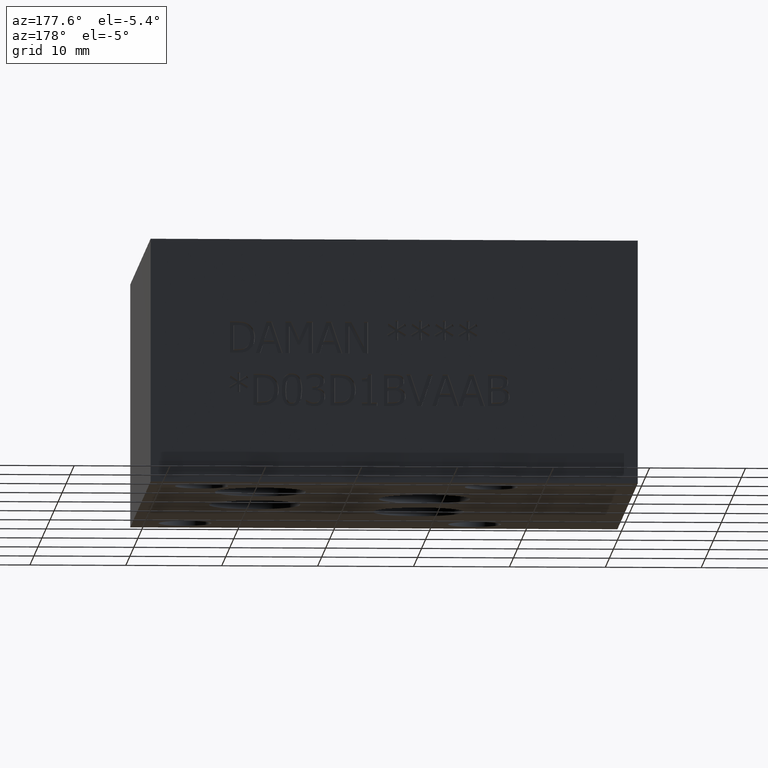
[diagram: clean part render]
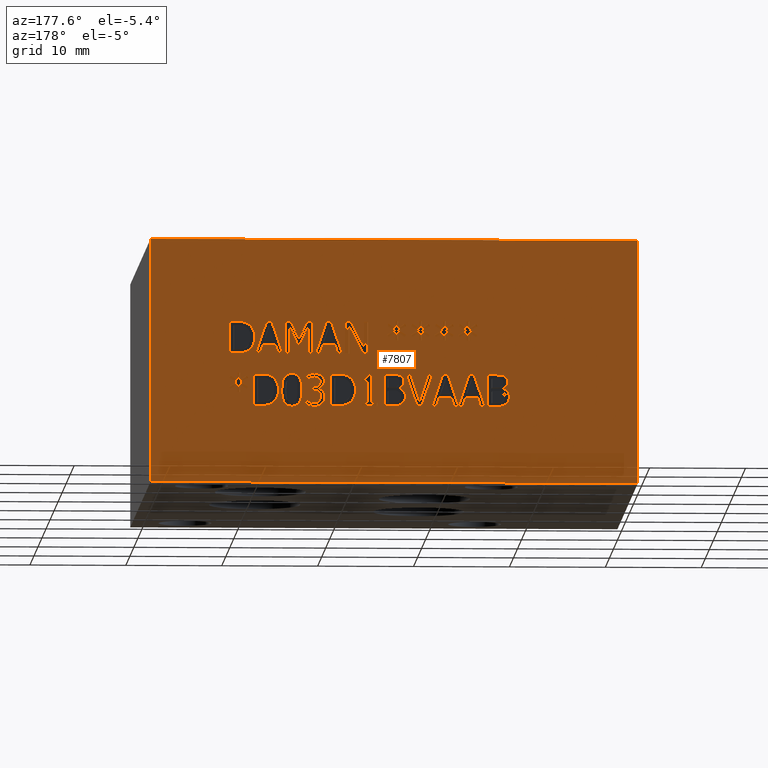
[diagram: same view with one face highlighted and labeled with its STEP entity id]
A machine part, auxiliary view. The second image highlights one B-rep face of the part: STEP entity #7807.
In plain terms, the highlighted planar face has unit normal (0, 1, 0).
Its self-contained STEP definition (entity closure, byte-faithful):
#197=FACE_BOUND('',#1102,.T.);
#198=FACE_BOUND('',#1103,.T.);
#199=FACE_BOUND('',#1104,.T.);
#200=FACE_BOUND('',#1105,.T.);
#201=FACE_BOUND('',#1106,.T.);
#202=FACE_BOUND('',#1107,.T.);
#203=FACE_BOUND('',#1108,.T.);
#204=FACE_BOUND('',#1109,.T.);
#205=FACE_BOUND('',#1110,.T.);
#206=FACE_BOUND('',#1111,.T.);
#207=FACE_BOUND('',#1112,.T.);
#208=FACE_BOUND('',#1113,.T.);
#209=FACE_BOUND('',#1114,.T.);
#210=FACE_BOUND('',#1115,.T.);
#211=FACE_BOUND('',#1116,.T.);
#212=FACE_BOUND('',#1117,.T.);
#213=FACE_BOUND('',#1118,.T.);
#214=FACE_BOUND('',#1119,.T.);
#215=FACE_BOUND('',#1120,.T.);
#252=B_SPLINE_CURVE_WITH_KNOTS('',2,(#10260,#10261,#10262,#10263),
 .UNSPECIFIED.,.F.,.F.,(3,1,3),(0.,1.,2.),.UNSPECIFIED.);
#262=B_SPLINE_CURVE_WITH_KNOTS('',2,(#10408,#10409,#10410,#10411),
 .UNSPECIFIED.,.F.,.F.,(3,1,3),(0.,1.,2.),.UNSPECIFIED.);
#264=B_SPLINE_CURVE_WITH_KNOTS('',2,(#10429,#10430,#10431,#10432),
 .UNSPECIFIED.,.F.,.F.,(3,1,3),(0.,1.,2.),.UNSPECIFIED.);
#266=B_SPLINE_CURVE_WITH_KNOTS('',2,(#10466,#10467,#10468,#10469),
 .UNSPECIFIED.,.F.,.F.,(3,1,3),(0.,1.,2.),.UNSPECIFIED.);
#268=B_SPLINE_CURVE_WITH_KNOTS('',2,(#10484,#10485,#10486,#10487),
 .UNSPECIFIED.,.F.,.F.,(3,1,3),(0.,1.,2.),.UNSPECIFIED.);
#278=B_SPLINE_CURVE_WITH_KNOTS('',2,(#10706,#10707,#10708,#10709),
 .UNSPECIFIED.,.F.,.F.,(3,1,3),(0.,1.,2.),.UNSPECIFIED.);
#280=B_SPLINE_CURVE_WITH_KNOTS('',2,(#10727,#10728,#10729,#10730),
 .UNSPECIFIED.,.F.,.F.,(3,1,3),(0.,1.,2.),.UNSPECIFIED.);
#282=B_SPLINE_CURVE_WITH_KNOTS('',2,(#10764,#10765,#10766,#10767),
 .UNSPECIFIED.,.F.,.F.,(3,1,3),(0.,1.,2.),.UNSPECIFIED.);
#284=B_SPLINE_CURVE_WITH_KNOTS('',2,(#10782,#10783,#10784,#10785),
 .UNSPECIFIED.,.F.,.F.,(3,1,3),(0.,1.,2.),.UNSPECIFIED.);
#302=B_SPLINE_CURVE_WITH_KNOTS('',2,(#10953,#10954,#10955,#10956),
 .UNSPECIFIED.,.F.,.F.,(3,1,3),(0.,1.,2.),.UNSPECIFIED.);
#304=B_SPLINE_CURVE_WITH_KNOTS('',2,(#10974,#10975,#10976,#10977),
 .UNSPECIFIED.,.F.,.F.,(3,1,3),(0.,1.,2.),.UNSPECIFIED.);
#306=B_SPLINE_CURVE_WITH_KNOTS('',2,(#10993,#10994,#10995,#10996),
 .UNSPECIFIED.,.F.,.F.,(3,1,3),(0.,1.,2.),.UNSPECIFIED.);
#308=B_SPLINE_CURVE_WITH_KNOTS('',2,(#11011,#11012,#11013,#11014),
 .UNSPECIFIED.,.F.,.F.,(3,1,3),(0.,1.,2.),.UNSPECIFIED.);
#310=B_SPLINE_CURVE_WITH_KNOTS('',2,(#11030,#11031,#11032,#11033),
 .UNSPECIFIED.,.F.,.F.,(3,1,3),(0.,1.,2.),.UNSPECIFIED.);
#312=B_SPLINE_CURVE_WITH_KNOTS('',2,(#11051,#11052,#11053,#11054),
 .UNSPECIFIED.,.F.,.F.,(3,1,3),(0.,1.,2.),.UNSPECIFIED.);
#314=B_SPLINE_CURVE_WITH_KNOTS('',2,(#11070,#11071,#11072,#11073),
 .UNSPECIFIED.,.F.,.F.,(3,1,3),(0.,1.,2.),.UNSPECIFIED.);
#316=B_SPLINE_CURVE_WITH_KNOTS('',2,(#11107,#11108,#11109,#11110),
 .UNSPECIFIED.,.F.,.F.,(3,1,3),(0.,1.,2.),.UNSPECIFIED.);
#318=B_SPLINE_CURVE_WITH_KNOTS('',2,(#11126,#11127,#11128,#11129),
 .UNSPECIFIED.,.F.,.F.,(3,1,3),(0.,1.,2.),.UNSPECIFIED.);
#320=B_SPLINE_CURVE_WITH_KNOTS('',2,(#11145,#11146,#11147,#11148),
 .UNSPECIFIED.,.F.,.F.,(3,1,3),(0.,1.,2.),.UNSPECIFIED.);
#322=B_SPLINE_CURVE_WITH_KNOTS('',2,(#11164,#11165,#11166,#11167),
 .UNSPECIFIED.,.F.,.F.,(3,1,3),(0.,1.,2.),.UNSPECIFIED.);
#324=B_SPLINE_CURVE_WITH_KNOTS('',2,(#11183,#11184,#11185,#11186),
 .UNSPECIFIED.,.F.,.F.,(3,1,3),(0.,1.,2.),.UNSPECIFIED.);
#326=B_SPLINE_CURVE_WITH_KNOTS('',2,(#11214,#11215,#11216,#11217),
 .UNSPECIFIED.,.F.,.F.,(3,1,3),(0.,1.,2.),.UNSPECIFIED.);
#328=B_SPLINE_CURVE_WITH_KNOTS('',2,(#11233,#11234,#11235,#11236),
 .UNSPECIFIED.,.F.,.F.,(3,1,3),(0.,1.,2.),.UNSPECIFIED.);
#330=B_SPLINE_CURVE_WITH_KNOTS('',2,(#11252,#11253,#11254,#11255),
 .UNSPECIFIED.,.F.,.F.,(3,1,3),(0.,1.,2.),.UNSPECIFIED.);
#332=B_SPLINE_CURVE_WITH_KNOTS('',2,(#11271,#11272,#11273,#11274),
 .UNSPECIFIED.,.F.,.F.,(3,1,3),(0.,1.,2.),.UNSPECIFIED.);
#334=B_SPLINE_CURVE_WITH_KNOTS('',2,(#11290,#11291,#11292,#11293),
 .UNSPECIFIED.,.F.,.F.,(3,1,3),(0.,1.,2.),.UNSPECIFIED.);
#336=B_SPLINE_CURVE_WITH_KNOTS('',2,(#11315,#11316,#11317,#11318),
 .UNSPECIFIED.,.F.,.F.,(3,1,3),(0.,1.,2.),.UNSPECIFIED.);
#338=B_SPLINE_CURVE_WITH_KNOTS('',2,(#11334,#11335,#11336,#11337),
 .UNSPECIFIED.,.F.,.F.,(3,1,3),(0.,1.,2.),.UNSPECIFIED.);
#340=B_SPLINE_CURVE_WITH_KNOTS('',2,(#11353,#11354,#11355,#11356),
 .UNSPECIFIED.,.F.,.F.,(3,1,3),(0.,1.,2.),.UNSPECIFIED.);
#342=B_SPLINE_CURVE_WITH_KNOTS('',2,(#11372,#11373,#11374,#11375),
 .UNSPECIFIED.,.F.,.F.,(3,1,3),(0.,1.,2.),.UNSPECIFIED.);
#344=B_SPLINE_CURVE_WITH_KNOTS('',2,(#11403,#11404,#11405,#11406),
 .UNSPECIFIED.,.F.,.F.,(3,1,3),(0.,1.,2.),.UNSPECIFIED.);
#346=B_SPLINE_CURVE_WITH_KNOTS('',2,(#11421,#11422,#11423,#11424),
 .UNSPECIFIED.,.F.,.F.,(3,1,3),(0.,1.,2.),.UNSPECIFIED.);
#364=B_SPLINE_CURVE_WITH_KNOTS('',2,(#11628,#11629,#11630,#11631),
 .UNSPECIFIED.,.F.,.F.,(3,1,3),(0.,1.,2.),.UNSPECIFIED.);
#366=B_SPLINE_CURVE_WITH_KNOTS('',2,(#11655,#11656,#11657,#11658),
 .UNSPECIFIED.,.F.,.F.,(3,1,3),(0.,1.,2.),.UNSPECIFIED.);
#368=B_SPLINE_CURVE_WITH_KNOTS('',2,(#11674,#11675,#11676,#11677),
 .UNSPECIFIED.,.F.,.F.,(3,1,3),(0.,1.,2.),.UNSPECIFIED.);
#370=B_SPLINE_CURVE_WITH_KNOTS('',2,(#11693,#11694,#11695,#11696),
 .UNSPECIFIED.,.F.,.F.,(3,1,3),(0.,1.,2.),.UNSPECIFIED.);
#372=B_SPLINE_CURVE_WITH_KNOTS('',2,(#11730,#11731,#11732,#11733),
 .UNSPECIFIED.,.F.,.F.,(3,1,3),(0.,1.,2.),.UNSPECIFIED.);
#374=B_SPLINE_CURVE_WITH_KNOTS('',2,(#11748,#11749,#11750,#11751),
 .UNSPECIFIED.,.F.,.F.,(3,1,3),(0.,1.,2.),.UNSPECIFIED.);
#392=B_SPLINE_CURVE_WITH_KNOTS('',2,(#12082,#12083,#12084,#12085),
 .UNSPECIFIED.,.F.,.F.,(3,1,3),(0.,1.,2.),.UNSPECIFIED.);
#394=B_SPLINE_CURVE_WITH_KNOTS('',2,(#12109,#12110,#12111,#12112),
 .UNSPECIFIED.,.F.,.F.,(3,1,3),(0.,1.,2.),.UNSPECIFIED.);
#396=B_SPLINE_CURVE_WITH_KNOTS('',2,(#12128,#12129,#12130,#12131),
 .UNSPECIFIED.,.F.,.F.,(3,1,3),(0.,1.,2.),.UNSPECIFIED.);
#398=B_SPLINE_CURVE_WITH_KNOTS('',2,(#12147,#12148,#12149,#12150),
 .UNSPECIFIED.,.F.,.F.,(3,1,3),(0.,1.,2.),.UNSPECIFIED.);
#400=B_SPLINE_CURVE_WITH_KNOTS('',2,(#12184,#12185,#12186,#12187),
 .UNSPECIFIED.,.F.,.F.,(3,1,3),(0.,1.,2.),.UNSPECIFIED.);
#402=B_SPLINE_CURVE_WITH_KNOTS('',2,(#12202,#12203,#12204,#12205),
 .UNSPECIFIED.,.F.,.F.,(3,1,3),(0.,1.,2.),.UNSPECIFIED.);
#404=B_SPLINE_CURVE_WITH_KNOTS('',2,(#12336,#12337,#12338,#12339),
 .UNSPECIFIED.,.F.,.F.,(3,1,3),(0.,1.,2.),.UNSPECIFIED.);
#405=B_SPLINE_CURVE_WITH_KNOTS('',2,(#12341,#12342,#12343,#12344),
 .UNSPECIFIED.,.F.,.F.,(3,1,3),(0.,1.,2.),.UNSPECIFIED.);
#406=B_SPLINE_CURVE_WITH_KNOTS('',2,(#12346,#12347,#12348,#12349),
 .UNSPECIFIED.,.F.,.F.,(3,1,3),(0.,1.,2.),.UNSPECIFIED.);
#407=B_SPLINE_CURVE_WITH_KNOTS('',2,(#12356,#12357,#12358,#12359),
 .UNSPECIFIED.,.F.,.F.,(3,1,3),(0.,1.,2.),.UNSPECIFIED.);
#686=FACE_OUTER_BOUND('',#1101,.T.);
#1101=EDGE_LOOP('',(#5704,#5705,#5706,#5707));
#1102=EDGE_LOOP('',(#5708,#5709,#5710,#5711,#5712,#5713,#5714,#5715,#5716,
#5717,#5718,#5719,#5720,#5721,#5722,#5723,#5724,#5725));
#1103=EDGE_LOOP('',(#5726,#5727,#5728,#5729,#5730,#5731,#5732,#5733,#5734,
#5735,#5736,#5737,#5738,#5739,#5740,#5741,#5742,#5743));
#1104=EDGE_LOOP('',(#5744,#5745,#5746,#5747,#5748,#5749,#5750,#5751,#5752,
#5753,#5754,#5755,#5756));
#1105=EDGE_LOOP('',(#5757,#5758,#5759,#5760,#5761,#5762,#5763,#5764));
#1106=EDGE_LOOP('',(#5765,#5766,#5767,#5768,#5769,#5770,#5771));
#1107=EDGE_LOOP('',(#5772,#5773,#5774,#5775,#5776,#5777,#5778,#5779));
#1108=EDGE_LOOP('',(#5780,#5781,#5782,#5783,#5784,#5785,#5786,#5787,#5788,
#5789));
#1109=EDGE_LOOP('',(#5790,#5791,#5792,#5793,#5794,#5795,#5796,#5797,#5798,
#5799,#5800,#5801,#5802,#5803,#5804,#5805,#5806,#5807));
#1110=EDGE_LOOP('',(#5808,#5809,#5810,#5811,#5812,#5813,#5814,#5815,#5816,
#5817,#5818,#5819,#5820,#5821,#5822,#5823,#5824,#5825));
#1111=EDGE_LOOP('',(#5826,#5827,#5828,#5829,#5830,#5831,#5832,#5833,#5834,
#5835));
#1112=EDGE_LOOP('',(#5836,#5837,#5838,#5839,#5840,#5841,#5842,#5843,#5844,
#5845,#5846,#5847,#5848,#5849,#5850));
#1113=EDGE_LOOP('',(#5851,#5852,#5853,#5854,#5855,#5856,#5857,#5858,#5859,
#5860));
#1114=EDGE_LOOP('',(#5861,#5862,#5863,#5864,#5865,#5866,#5867,#5868,#5869,
#5870,#5871,#5872,#5873,#5874,#5875,#5876,#5877,#5878,#5879,#5880,#5881,
#5882,#5883,#5884,#5885,#5886,#5887));
#1115=EDGE_LOOP('',(#5888,#5889,#5890,#5891));
#1116=EDGE_LOOP('',(#5892,#5893,#5894,#5895,#5896,#5897,#5898));
#1117=EDGE_LOOP('',(#5899,#5900,#5901,#5902,#5903,#5904,#5905,#5906,#5907,
#5908,#5909,#5910,#5911,#5912,#5913,#5914,#5915,#5916));
#1118=EDGE_LOOP('',(#5917,#5918,#5919,#5920,#5921,#5922,#5923));
#1119=EDGE_LOOP('',(#5924,#5925,#5926,#5927,#5928,#5929,#5930,#5931,#5932,
#5933,#5934));
#1120=EDGE_LOOP('',(#5935,#5936,#5937,#5938,#5939,#5940,#5941));
#1380=LINE('',#10184,#2187);
#1384=LINE('',#10192,#2191);
#1387=LINE('',#10198,#2194);
#1390=LINE('',#10204,#2197);
#1393=LINE('',#10210,#2200);
#1396=LINE('',#10216,#2203);
#1399=LINE('',#10221,#2206);
#1401=LINE('',#10227,#2208);
#1405=LINE('',#10235,#2212);
#1408=LINE('',#10241,#2215);
#1411=LINE('',#10247,#2218);
#1415=LINE('',#10272,#2222);
#1418=LINE('',#10278,#2225);
#1421=LINE('',#10284,#2228);
#1424=LINE('',#10290,#2231);
#1427=LINE('',#10296,#2234);
#1430=LINE('',#10301,#2237);
#1448=LINE('',#10441,#2255);
#1451=LINE('',#10447,#2258);
#1454=LINE('',#10453,#2261);
#1458=LINE('',#10496,#2265);
#1462=LINE('',#10504,#2269);
#1465=LINE('',#10510,#2272);
#1468=LINE('',#10516,#2275);
#1471=LINE('',#10522,#2278);
#1474=LINE('',#10528,#2281);
#1477=LINE('',#10534,#2284);
#1480=LINE('',#10540,#2287);
#1483=LINE('',#10546,#2290);
#1486=LINE('',#10552,#2293);
#1489=LINE('',#10558,#2296);
#1492=LINE('',#10564,#2299);
#1495=LINE('',#10570,#2302);
#1498=LINE('',#10576,#2305);
#1501=LINE('',#10582,#2308);
#1504=LINE('',#10588,#2311);
#1507=LINE('',#10594,#2314);
#1510=LINE('',#10599,#2317);
#1528=LINE('',#10739,#2335);
#1531=LINE('',#10745,#2338);
#1534=LINE('',#10751,#2341);
#1554=LINE('',#11082,#2361);
#1557=LINE('',#11088,#2364);
#1560=LINE('',#11094,#2367);
#1568=LINE('',#11195,#2375);
#1571=LINE('',#11201,#2378);
#1579=LINE('',#11302,#2386);
#1586=LINE('',#11384,#2393);
#1589=LINE('',#11390,#2396);
#1621=LINE('',#11642,#2428);
#1627=LINE('',#11705,#2434);
#1630=LINE('',#11711,#2437);
#1633=LINE('',#11717,#2440);
#1649=LINE('',#11783,#2456);
#1650=LINE('',#11787,#2457);
#1654=LINE('',#11795,#2461);
#1657=LINE('',#11801,#2464);
#1660=LINE('',#11807,#2467);
#1663=LINE('',#11813,#2470);
#1666=LINE('',#11818,#2473);
#1668=LINE('',#11822,#2475);
#1680=LINE('',#11847,#2487);
#1684=LINE('',#11855,#2491);
#1687=LINE('',#11861,#2494);
#1690=LINE('',#11866,#2497);
#1692=LINE('',#11870,#2499);
#1695=LINE('',#11876,#2502);
#1698=LINE('',#11881,#2505);
#1728=LINE('',#12096,#2535);
#1734=LINE('',#12159,#2541);
#1737=LINE('',#12165,#2544);
#1740=LINE('',#12171,#2547);
#1744=LINE('',#12214,#2551);
#1745=LINE('',#12216,#2552);
#1746=LINE('',#12218,#2553);
#1747=LINE('',#12219,#2554);
#1748=LINE('',#12222,#2555);
#1749=LINE('',#12224,#2556);
#1750=LINE('',#12226,#2557);
#1751=LINE('',#12228,#2558);
#1752=LINE('',#12230,#2559);
#1753=LINE('',#12232,#2560);
#1754=LINE('',#12234,#2561);
#1755=LINE('',#12236,#2562);
#1756=LINE('',#12238,#2563);
#1757=LINE('',#12240,#2564);
#1758=LINE('',#12242,#2565);
#1759=LINE('',#12244,#2566);
#1760=LINE('',#12246,#2567);
#1761=LINE('',#12248,#2568);
#1762=LINE('',#12250,#2569);
#1763=LINE('',#12252,#2570);
#1764=LINE('',#12254,#2571);
#1765=LINE('',#12255,#2572);
#1766=LINE('',#12258,#2573);
#1767=LINE('',#12260,#2574);
#1768=LINE('',#12262,#2575);
#1769=LINE('',#12264,#2576);
#1770=LINE('',#12266,#2577);
#1771=LINE('',#12268,#2578);
#1772=LINE('',#12270,#2579);
#1773=LINE('',#12272,#2580);
#1774=LINE('',#12274,#2581);
#1775=LINE('',#12276,#2582);
#1776=LINE('',#12278,#2583);
#1777=LINE('',#12280,#2584);
#1778=LINE('',#12282,#2585);
#1779=LINE('',#12284,#2586);
#1780=LINE('',#12286,#2587);
#1781=LINE('',#12288,#2588);
#1782=LINE('',#12290,#2589);
#1783=LINE('',#12291,#2590);
#1784=LINE('',#12294,#2591);
#1785=LINE('',#12296,#2592);
#1786=LINE('',#12298,#2593);
#1787=LINE('',#12300,#2594);
#1788=LINE('',#12302,#2595);
#1789=LINE('',#12304,#2596);
#1790=LINE('',#12306,#2597);
#1791=LINE('',#12308,#2598);
#1792=LINE('',#12310,#2599);
#1793=LINE('',#12312,#2600);
#1794=LINE('',#12314,#2601);
#1795=LINE('',#12316,#2602);
#1796=LINE('',#12317,#2603);
#1797=LINE('',#12320,#2604);
#1798=LINE('',#12322,#2605);
#1799=LINE('',#12324,#2606);
#1800=LINE('',#12326,#2607);
#1801=LINE('',#12328,#2608);
#1802=LINE('',#12330,#2609);
#1803=LINE('',#12332,#2610);
#1804=LINE('',#12333,#2611);
#1805=LINE('',#12351,#2612);
#1806=LINE('',#12353,#2613);
#1807=LINE('',#12355,#2614);
#1808=LINE('',#12362,#2615);
#1809=LINE('',#12364,#2616);
#1810=LINE('',#12366,#2617);
#1811=LINE('',#12368,#2618);
#1812=LINE('',#12370,#2619);
#1813=LINE('',#12372,#2620);
#1814=LINE('',#12374,#2621);
#1815=LINE('',#12375,#2622);
#1816=LINE('',#12378,#2623);
#1817=LINE('',#12380,#2624);
#1818=LINE('',#12382,#2625);
#1819=LINE('',#12384,#2626);
#1820=LINE('',#12386,#2627);
#1821=LINE('',#12388,#2628);
#1822=LINE('',#12390,#2629);
#1823=LINE('',#12392,#2630);
#1824=LINE('',#12394,#2631);
#1825=LINE('',#12395,#2632);
#1826=LINE('',#12398,#2633);
#1827=LINE('',#12400,#2634);
#1828=LINE('',#12402,#2635);
#1829=LINE('',#12404,#2636);
#1830=LINE('',#12406,#2637);
#1831=LINE('',#12408,#2638);
#1832=LINE('',#12410,#2639);
#1833=LINE('',#12412,#2640);
#1834=LINE('',#12414,#2641);
#1835=LINE('',#12416,#2642);
#1836=LINE('',#12418,#2643);
#1837=LINE('',#12420,#2644);
#1838=LINE('',#12422,#2645);
#1839=LINE('',#12424,#2646);
#1840=LINE('',#12426,#2647);
#1841=LINE('',#12428,#2648);
#1842=LINE('',#12430,#2649);
#1843=LINE('',#12431,#2650);
#1844=LINE('',#12434,#2651);
#1845=LINE('',#12436,#2652);
#1846=LINE('',#12438,#2653);
#1847=LINE('',#12440,#2654);
#1848=LINE('',#12442,#2655);
#1849=LINE('',#12444,#2656);
#1850=LINE('',#12446,#2657);
#1851=LINE('',#12448,#2658);
#1852=LINE('',#12450,#2659);
#1853=LINE('',#12452,#2660);
#1854=LINE('',#12454,#2661);
#1855=LINE('',#12456,#2662);
#1856=LINE('',#12458,#2663);
#1857=LINE('',#12460,#2664);
#1858=LINE('',#12462,#2665);
#1859=LINE('',#12464,#2666);
#1860=LINE('',#12466,#2667);
#1861=LINE('',#12467,#2668);
#2187=VECTOR('',#8491,10.);
#2191=VECTOR('',#8497,10.);
#2194=VECTOR('',#8502,10.);
#2197=VECTOR('',#8507,10.);
#2200=VECTOR('',#8512,10.);
#2203=VECTOR('',#8517,10.);
#2206=VECTOR('',#8522,10.);
#2208=VECTOR('',#8528,10.);
#2212=VECTOR('',#8534,10.);
#2215=VECTOR('',#8539,10.);
#2218=VECTOR('',#8544,10.);
#2222=VECTOR('',#8550,10.);
#2225=VECTOR('',#8555,10.);
#2228=VECTOR('',#8560,10.);
#2231=VECTOR('',#8565,10.);
#2234=VECTOR('',#8570,10.);
#2237=VECTOR('',#8575,10.);
#2255=VECTOR('',#8603,10.);
#2258=VECTOR('',#8608,10.);
#2261=VECTOR('',#8613,10.);
#2265=VECTOR('',#8621,10.);
#2269=VECTOR('',#8627,10.);
#2272=VECTOR('',#8632,10.);
#2275=VECTOR('',#8637,10.);
#2278=VECTOR('',#8642,10.);
#2281=VECTOR('',#8647,10.);
#2284=VECTOR('',#8652,10.);
#2287=VECTOR('',#8657,10.);
#2290=VECTOR('',#8662,10.);
#2293=VECTOR('',#8667,10.);
#2296=VECTOR('',#8672,10.);
#2299=VECTOR('',#8677,10.);
#2302=VECTOR('',#8682,10.);
#2305=VECTOR('',#8687,10.);
#2308=VECTOR('',#8692,10.);
#2311=VECTOR('',#8697,10.);
#2314=VECTOR('',#8702,10.);
#2317=VECTOR('',#8707,10.);
#2335=VECTOR('',#8735,10.);
#2338=VECTOR('',#8740,10.);
#2341=VECTOR('',#8745,10.);
#2361=VECTOR('',#8771,10.);
#2364=VECTOR('',#8776,10.);
#2367=VECTOR('',#8781,10.);
#2375=VECTOR('',#8791,10.);
#2378=VECTOR('',#8796,10.);
#2386=VECTOR('',#8806,10.);
#2393=VECTOR('',#8815,10.);
#2396=VECTOR('',#8820,10.);
#2428=VECTOR('',#8868,10.);
#2434=VECTOR('',#8876,10.);
#2437=VECTOR('',#8881,10.);
#2440=VECTOR('',#8886,10.);
#2456=VECTOR('',#8912,10.);
#2457=VECTOR('',#8915,10.);
#2461=VECTOR('',#8921,10.);
#2464=VECTOR('',#8926,10.);
#2467=VECTOR('',#8931,10.);
#2470=VECTOR('',#8936,10.);
#2473=VECTOR('',#8941,10.);
#2475=VECTOR('',#8945,10.);
#2487=VECTOR('',#8965,10.);
#2491=VECTOR('',#8971,10.);
#2494=VECTOR('',#8976,10.);
#2497=VECTOR('',#8981,10.);
#2499=VECTOR('',#8985,10.);
#2502=VECTOR('',#8990,10.);
#2505=VECTOR('',#8995,10.);
#2535=VECTOR('',#9041,10.);
#2541=VECTOR('',#9049,10.);
#2544=VECTOR('',#9054,10.);
#2547=VECTOR('',#9059,10.);
#2551=VECTOR('',#9067,10.);
#2552=VECTOR('',#9068,10.);
#2553=VECTOR('',#9069,10.);
#2554=VECTOR('',#9070,10.);
#2555=VECTOR('',#9071,10.);
#2556=VECTOR('',#9072,10.);
#2557=VECTOR('',#9073,10.);
#2558=VECTOR('',#9074,10.);
#2559=VECTOR('',#9075,10.);
#2560=VECTOR('',#9076,10.);
#2561=VECTOR('',#9077,10.);
#2562=VECTOR('',#9078,10.);
#2563=VECTOR('',#9079,10.);
#2564=VECTOR('',#9080,10.);
#2565=VECTOR('',#9081,10.);
#2566=VECTOR('',#9082,10.);
#2567=VECTOR('',#9083,10.);
#2568=VECTOR('',#9084,10.);
#2569=VECTOR('',#9085,10.);
#2570=VECTOR('',#9086,10.);
#2571=VECTOR('',#9087,10.);
#2572=VECTOR('',#9088,10.);
#2573=VECTOR('',#9089,10.);
#2574=VECTOR('',#9090,10.);
#2575=VECTOR('',#9091,10.);
#2576=VECTOR('',#9092,10.);
#2577=VECTOR('',#9093,10.);
#2578=VECTOR('',#9094,10.);
#2579=VECTOR('',#9095,10.);
#2580=VECTOR('',#9096,10.);
#2581=VECTOR('',#9097,10.);
#2582=VECTOR('',#9098,10.);
#2583=VECTOR('',#9099,10.);
#2584=VECTOR('',#9100,10.);
#2585=VECTOR('',#9101,10.);
#2586=VECTOR('',#9102,10.);
#2587=VECTOR('',#9103,10.);
#2588=VECTOR('',#9104,10.);
#2589=VECTOR('',#9105,10.);
#2590=VECTOR('',#9106,10.);
#2591=VECTOR('',#9107,10.);
#2592=VECTOR('',#9108,10.);
#2593=VECTOR('',#9109,10.);
#2594=VECTOR('',#9110,10.);
#2595=VECTOR('',#9111,10.);
#2596=VECTOR('',#9112,10.);
#2597=VECTOR('',#9113,10.);
#2598=VECTOR('',#9114,10.);
#2599=VECTOR('',#9115,10.);
#2600=VECTOR('',#9116,10.);
#2601=VECTOR('',#9117,10.);
#2602=VECTOR('',#9118,10.);
#2603=VECTOR('',#9119,10.);
#2604=VECTOR('',#9120,10.);
#2605=VECTOR('',#9121,10.);
#2606=VECTOR('',#9122,10.);
#2607=VECTOR('',#9123,10.);
#2608=VECTOR('',#9124,10.);
#2609=VECTOR('',#9125,10.);
#2610=VECTOR('',#9126,10.);
#2611=VECTOR('',#9127,10.);
#2612=VECTOR('',#9128,10.);
#2613=VECTOR('',#9129,10.);
#2614=VECTOR('',#9130,10.);
#2615=VECTOR('',#9131,10.);
#2616=VECTOR('',#9132,10.);
#2617=VECTOR('',#9133,10.);
#2618=VECTOR('',#9134,10.);
#2619=VECTOR('',#9135,10.);
#2620=VECTOR('',#9136,10.);
#2621=VECTOR('',#9137,10.);
#2622=VECTOR('',#9138,10.);
#2623=VECTOR('',#9139,10.);
#2624=VECTOR('',#9140,10.);
#2625=VECTOR('',#9141,10.);
#2626=VECTOR('',#9142,10.);
#2627=VECTOR('',#9143,10.);
#2628=VECTOR('',#9144,10.);
#2629=VECTOR('',#9145,10.);
#2630=VECTOR('',#9146,10.);
#2631=VECTOR('',#9147,10.);
#2632=VECTOR('',#9148,10.);
#2633=VECTOR('',#9149,10.);
#2634=VECTOR('',#9150,10.);
#2635=VECTOR('',#9151,10.);
#2636=VECTOR('',#9152,10.);
#2637=VECTOR('',#9153,10.);
#2638=VECTOR('',#9154,10.);
#2639=VECTOR('',#9155,10.);
#2640=VECTOR('',#9156,10.);
#2641=VECTOR('',#9157,10.);
#2642=VECTOR('',#9158,10.);
#2643=VECTOR('',#9159,10.);
#2644=VECTOR('',#9160,10.);
#2645=VECTOR('',#9161,10.);
#2646=VECTOR('',#9162,10.);
#2647=VECTOR('',#9163,10.);
#2648=VECTOR('',#9164,10.);
#2649=VECTOR('',#9165,10.);
#2650=VECTOR('',#9166,10.);
#2651=VECTOR('',#9167,10.);
#2652=VECTOR('',#9168,10.);
#2653=VECTOR('',#9169,10.);
#2654=VECTOR('',#9170,10.);
#2655=VECTOR('',#9171,10.);
#2656=VECTOR('',#9172,10.);
#2657=VECTOR('',#9173,10.);
#2658=VECTOR('',#9174,10.);
#2659=VECTOR('',#9175,10.);
#2660=VECTOR('',#9176,10.);
#2661=VECTOR('',#9177,10.);
#2662=VECTOR('',#9178,10.);
#2663=VECTOR('',#9179,10.);
#2664=VECTOR('',#9180,10.);
#2665=VECTOR('',#9181,10.);
#2666=VECTOR('',#9182,10.);
#2667=VECTOR('',#9183,10.);
#2668=VECTOR('',#9184,10.);
#2994=VERTEX_POINT('',#10182);
#2995=VERTEX_POINT('',#10183);
#2998=VERTEX_POINT('',#10191);
#3000=VERTEX_POINT('',#10197);
#3002=VERTEX_POINT('',#10203);
#3004=VERTEX_POINT('',#10209);
#3006=VERTEX_POINT('',#10215);
#3008=VERTEX_POINT('',#10225);
#3009=VERTEX_POINT('',#10226);
#3012=VERTEX_POINT('',#10234);
#3014=VERTEX_POINT('',#10240);
#3016=VERTEX_POINT('',#10246);
#3018=VERTEX_POINT('',#10259);
#3020=VERTEX_POINT('',#10271);
#3022=VERTEX_POINT('',#10277);
#3024=VERTEX_POINT('',#10283);
#3026=VERTEX_POINT('',#10289);
#3028=VERTEX_POINT('',#10295);
#3044=VERTEX_POINT('',#10406);
#3045=VERTEX_POINT('',#10407);
#3048=VERTEX_POINT('',#10428);
#3050=VERTEX_POINT('',#10440);
#3052=VERTEX_POINT('',#10446);
#3054=VERTEX_POINT('',#10452);
#3056=VERTEX_POINT('',#10465);
#3058=VERTEX_POINT('',#10494);
#3059=VERTEX_POINT('',#10495);
#3062=VERTEX_POINT('',#10503);
#3064=VERTEX_POINT('',#10509);
#3066=VERTEX_POINT('',#10515);
#3068=VERTEX_POINT('',#10521);
#3070=VERTEX_POINT('',#10527);
#3072=VERTEX_POINT('',#10533);
#3074=VERTEX_POINT('',#10539);
#3076=VERTEX_POINT('',#10545);
#3078=VERTEX_POINT('',#10551);
#3080=VERTEX_POINT('',#10557);
#3082=VERTEX_POINT('',#10563);
#3084=VERTEX_POINT('',#10569);
#3086=VERTEX_POINT('',#10575);
#3088=VERTEX_POINT('',#10581);
#3090=VERTEX_POINT('',#10587);
#3092=VERTEX_POINT('',#10593);
#3108=VERTEX_POINT('',#10704);
#3109=VERTEX_POINT('',#10705);
#3112=VERTEX_POINT('',#10726);
#3114=VERTEX_POINT('',#10738);
#3116=VERTEX_POINT('',#10744);
#3118=VERTEX_POINT('',#10750);
#3120=VERTEX_POINT('',#10763);
#3138=VERTEX_POINT('',#10951);
#3139=VERTEX_POINT('',#10952);
#3142=VERTEX_POINT('',#10973);
#3144=VERTEX_POINT('',#10992);
#3146=VERTEX_POINT('',#11028);
#3147=VERTEX_POINT('',#11029);
#3150=VERTEX_POINT('',#11050);
#3152=VERTEX_POINT('',#11069);
#3154=VERTEX_POINT('',#11081);
#3156=VERTEX_POINT('',#11087);
#3158=VERTEX_POINT('',#11093);
#3160=VERTEX_POINT('',#11106);
#3162=VERTEX_POINT('',#11125);
#3164=VERTEX_POINT('',#11144);
#3166=VERTEX_POINT('',#11163);
#3168=VERTEX_POINT('',#11182);
#3170=VERTEX_POINT('',#11194);
#3172=VERTEX_POINT('',#11200);
#3174=VERTEX_POINT('',#11213);
#3176=VERTEX_POINT('',#11232);
#3178=VERTEX_POINT('',#11251);
#3180=VERTEX_POINT('',#11270);
#3182=VERTEX_POINT('',#11289);
#3184=VERTEX_POINT('',#11301);
#3186=VERTEX_POINT('',#11314);
#3188=VERTEX_POINT('',#11333);
#3190=VERTEX_POINT('',#11352);
#3192=VERTEX_POINT('',#11371);
#3194=VERTEX_POINT('',#11383);
#3196=VERTEX_POINT('',#11389);
#3198=VERTEX_POINT('',#11402);
#3228=VERTEX_POINT('',#11626);
#3229=VERTEX_POINT('',#11627);
#3232=VERTEX_POINT('',#11641);
#3234=VERTEX_POINT('',#11654);
#3236=VERTEX_POINT('',#11673);
#3238=VERTEX_POINT('',#11692);
#3240=VERTEX_POINT('',#11704);
#3242=VERTEX_POINT('',#11710);
#3244=VERTEX_POINT('',#11716);
#3246=VERTEX_POINT('',#11729);
#3254=VERTEX_POINT('',#11776);
#3257=VERTEX_POINT('',#11781);
#3258=VERTEX_POINT('',#11785);
#3259=VERTEX_POINT('',#11786);
#3262=VERTEX_POINT('',#11794);
#3264=VERTEX_POINT('',#11800);
#3266=VERTEX_POINT('',#11806);
#3268=VERTEX_POINT('',#11812);
#3270=VERTEX_POINT('',#11821);
#3278=VERTEX_POINT('',#11845);
#3279=VERTEX_POINT('',#11846);
#3282=VERTEX_POINT('',#11854);
#3284=VERTEX_POINT('',#11860);
#3286=VERTEX_POINT('',#11869);
#3288=VERTEX_POINT('',#11875);
#3318=VERTEX_POINT('',#12080);
#3319=VERTEX_POINT('',#12081);
#3322=VERTEX_POINT('',#12095);
#3324=VERTEX_POINT('',#12108);
#3326=VERTEX_POINT('',#12127);
#3328=VERTEX_POINT('',#12146);
#3330=VERTEX_POINT('',#12158);
#3332=VERTEX_POINT('',#12164);
#3334=VERTEX_POINT('',#12170);
#3336=VERTEX_POINT('',#12183);
#3338=VERTEX_POINT('',#12212);
#3339=VERTEX_POINT('',#12213);
#3340=VERTEX_POINT('',#12215);
#3341=VERTEX_POINT('',#12217);
#3342=VERTEX_POINT('',#12220);
#3343=VERTEX_POINT('',#12221);
#3344=VERTEX_POINT('',#12223);
#3345=VERTEX_POINT('',#12225);
#3346=VERTEX_POINT('',#12227);
#3347=VERTEX_POINT('',#12229);
#3348=VERTEX_POINT('',#12231);
#3349=VERTEX_POINT('',#12233);
#3350=VERTEX_POINT('',#12235);
#3351=VERTEX_POINT('',#12237);
#3352=VERTEX_POINT('',#12239);
#3353=VERTEX_POINT('',#12241);
#3354=VERTEX_POINT('',#12243);
#3355=VERTEX_POINT('',#12245);
#3356=VERTEX_POINT('',#12247);
#3357=VERTEX_POINT('',#12249);
#3358=VERTEX_POINT('',#12251);
#3359=VERTEX_POINT('',#12253);
#3360=VERTEX_POINT('',#12256);
#3361=VERTEX_POINT('',#12257);
#3362=VERTEX_POINT('',#12259);
#3363=VERTEX_POINT('',#12261);
#3364=VERTEX_POINT('',#12263);
#3365=VERTEX_POINT('',#12265);
#3366=VERTEX_POINT('',#12267);
#3367=VERTEX_POINT('',#12269);
#3368=VERTEX_POINT('',#12271);
#3369=VERTEX_POINT('',#12273);
#3370=VERTEX_POINT('',#12275);
#3371=VERTEX_POINT('',#12277);
#3372=VERTEX_POINT('',#12279);
#3373=VERTEX_POINT('',#12281);
#3374=VERTEX_POINT('',#12283);
#3375=VERTEX_POINT('',#12285);
#3376=VERTEX_POINT('',#12287);
#3377=VERTEX_POINT('',#12289);
#3378=VERTEX_POINT('',#12292);
#3379=VERTEX_POINT('',#12293);
#3380=VERTEX_POINT('',#12295);
#3381=VERTEX_POINT('',#12297);
#3382=VERTEX_POINT('',#12299);
#3383=VERTEX_POINT('',#12301);
#3384=VERTEX_POINT('',#12303);
#3385=VERTEX_POINT('',#12305);
#3386=VERTEX_POINT('',#12307);
#3387=VERTEX_POINT('',#12309);
#3388=VERTEX_POINT('',#12311);
#3389=VERTEX_POINT('',#12313);
#3390=VERTEX_POINT('',#12315);
#3391=VERTEX_POINT('',#12318);
#3392=VERTEX_POINT('',#12319);
#3393=VERTEX_POINT('',#12321);
#3394=VERTEX_POINT('',#12323);
#3395=VERTEX_POINT('',#12325);
#3396=VERTEX_POINT('',#12327);
#3397=VERTEX_POINT('',#12329);
#3398=VERTEX_POINT('',#12331);
#3399=VERTEX_POINT('',#12334);
#3400=VERTEX_POINT('',#12335);
#3401=VERTEX_POINT('',#12340);
#3402=VERTEX_POINT('',#12345);
#3403=VERTEX_POINT('',#12350);
#3404=VERTEX_POINT('',#12352);
#3405=VERTEX_POINT('',#12354);
#3406=VERTEX_POINT('',#12360);
#3407=VERTEX_POINT('',#12361);
#3408=VERTEX_POINT('',#12363);
#3409=VERTEX_POINT('',#12365);
#3410=VERTEX_POINT('',#12367);
#3411=VERTEX_POINT('',#12369);
#3412=VERTEX_POINT('',#12371);
#3413=VERTEX_POINT('',#12373);
#3414=VERTEX_POINT('',#12376);
#3415=VERTEX_POINT('',#12377);
#3416=VERTEX_POINT('',#12379);
#3417=VERTEX_POINT('',#12381);
#3418=VERTEX_POINT('',#12383);
#3419=VERTEX_POINT('',#12385);
#3420=VERTEX_POINT('',#12387);
#3421=VERTEX_POINT('',#12389);
#3422=VERTEX_POINT('',#12391);
#3423=VERTEX_POINT('',#12393);
#3424=VERTEX_POINT('',#12396);
#3425=VERTEX_POINT('',#12397);
#3426=VERTEX_POINT('',#12399);
#3427=VERTEX_POINT('',#12401);
#3428=VERTEX_POINT('',#12403);
#3429=VERTEX_POINT('',#12405);
#3430=VERTEX_POINT('',#12407);
#3431=VERTEX_POINT('',#12409);
#3432=VERTEX_POINT('',#12411);
#3433=VERTEX_POINT('',#12413);
#3434=VERTEX_POINT('',#12415);
#3435=VERTEX_POINT('',#12417);
#3436=VERTEX_POINT('',#12419);
#3437=VERTEX_POINT('',#12421);
#3438=VERTEX_POINT('',#12423);
#3439=VERTEX_POINT('',#12425);
#3440=VERTEX_POINT('',#12427);
#3441=VERTEX_POINT('',#12429);
#3442=VERTEX_POINT('',#12432);
#3443=VERTEX_POINT('',#12433);
#3444=VERTEX_POINT('',#12435);
#3445=VERTEX_POINT('',#12437);
#3446=VERTEX_POINT('',#12439);
#3447=VERTEX_POINT('',#12441);
#3448=VERTEX_POINT('',#12443);
#3449=VERTEX_POINT('',#12445);
#3450=VERTEX_POINT('',#12447);
#3451=VERTEX_POINT('',#12449);
#3452=VERTEX_POINT('',#12451);
#3453=VERTEX_POINT('',#12453);
#3454=VERTEX_POINT('',#12455);
#3455=VERTEX_POINT('',#12457);
#3456=VERTEX_POINT('',#12459);
#3457=VERTEX_POINT('',#12461);
#3458=VERTEX_POINT('',#12463);
#3459=VERTEX_POINT('',#12465);
#3749=EDGE_CURVE('',#2994,#2995,#1380,.T.);
#3753=EDGE_CURVE('',#2998,#2994,#1384,.T.);
#3756=EDGE_CURVE('',#3000,#2998,#1387,.T.);
#3759=EDGE_CURVE('',#3002,#3000,#1390,.T.);
#3762=EDGE_CURVE('',#3004,#3002,#1393,.T.);
#3765=EDGE_CURVE('',#3006,#3004,#1396,.T.);
#3768=EDGE_CURVE('',#2995,#3006,#1399,.T.);
#3770=EDGE_CURVE('',#3008,#3009,#1401,.T.);
#3774=EDGE_CURVE('',#3012,#3008,#1405,.T.);
#3777=EDGE_CURVE('',#3014,#3012,#1408,.T.);
#3780=EDGE_CURVE('',#3016,#3014,#1411,.T.);
#3783=EDGE_CURVE('',#3018,#3016,#252,.T.);
#3786=EDGE_CURVE('',#3020,#3018,#1415,.T.);
#3789=EDGE_CURVE('',#3022,#3020,#1418,.T.);
#3792=EDGE_CURVE('',#3024,#3022,#1421,.T.);
#3795=EDGE_CURVE('',#3026,#3024,#1424,.T.);
#3798=EDGE_CURVE('',#3028,#3026,#1427,.T.);
#3801=EDGE_CURVE('',#3009,#3028,#1430,.T.);
#3824=EDGE_CURVE('',#3044,#3045,#262,.T.);
#3828=EDGE_CURVE('',#3048,#3044,#264,.T.);
#3831=EDGE_CURVE('',#3050,#3048,#1448,.T.);
#3834=EDGE_CURVE('',#3052,#3050,#1451,.T.);
#3837=EDGE_CURVE('',#3054,#3052,#1454,.T.);
#3840=EDGE_CURVE('',#3056,#3054,#266,.T.);
#3843=EDGE_CURVE('',#3045,#3056,#268,.T.);
#3845=EDGE_CURVE('',#3058,#3059,#1458,.T.);
#3849=EDGE_CURVE('',#3062,#3058,#1462,.T.);
#3852=EDGE_CURVE('',#3064,#3062,#1465,.T.);
#3855=EDGE_CURVE('',#3066,#3064,#1468,.T.);
#3858=EDGE_CURVE('',#3068,#3066,#1471,.T.);
#3861=EDGE_CURVE('',#3070,#3068,#1474,.T.);
#3864=EDGE_CURVE('',#3072,#3070,#1477,.T.);
#3867=EDGE_CURVE('',#3074,#3072,#1480,.T.);
#3870=EDGE_CURVE('',#3076,#3074,#1483,.T.);
#3873=EDGE_CURVE('',#3078,#3076,#1486,.T.);
#3876=EDGE_CURVE('',#3080,#3078,#1489,.T.);
#3879=EDGE_CURVE('',#3082,#3080,#1492,.T.);
#3882=EDGE_CURVE('',#3084,#3082,#1495,.T.);
#3885=EDGE_CURVE('',#3086,#3084,#1498,.T.);
#3888=EDGE_CURVE('',#3088,#3086,#1501,.T.);
#3891=EDGE_CURVE('',#3090,#3088,#1504,.T.);
#3894=EDGE_CURVE('',#3092,#3090,#1507,.T.);
#3897=EDGE_CURVE('',#3059,#3092,#1510,.T.);
#3920=EDGE_CURVE('',#3108,#3109,#278,.T.);
#3924=EDGE_CURVE('',#3112,#3108,#280,.T.);
#3927=EDGE_CURVE('',#3114,#3112,#1528,.T.);
#3930=EDGE_CURVE('',#3116,#3114,#1531,.T.);
#3933=EDGE_CURVE('',#3118,#3116,#1534,.T.);
#3936=EDGE_CURVE('',#3120,#3118,#282,.T.);
#3939=EDGE_CURVE('',#3109,#3120,#284,.T.);
#3965=EDGE_CURVE('',#3138,#3139,#302,.T.);
#3969=EDGE_CURVE('',#3142,#3138,#304,.T.);
#3972=EDGE_CURVE('',#3144,#3142,#306,.T.);
#3975=EDGE_CURVE('',#3139,#3144,#308,.T.);
#3977=EDGE_CURVE('',#3146,#3147,#310,.T.);
#3981=EDGE_CURVE('',#3150,#3146,#312,.T.);
#3984=EDGE_CURVE('',#3152,#3150,#314,.T.);
#3987=EDGE_CURVE('',#3154,#3152,#1554,.T.);
#3990=EDGE_CURVE('',#3156,#3154,#1557,.T.);
#3993=EDGE_CURVE('',#3158,#3156,#1560,.T.);
#3996=EDGE_CURVE('',#3160,#3158,#316,.T.);
#3999=EDGE_CURVE('',#3162,#3160,#318,.T.);
#4002=EDGE_CURVE('',#3164,#3162,#320,.T.);
#4005=EDGE_CURVE('',#3166,#3164,#322,.T.);
#4008=EDGE_CURVE('',#3168,#3166,#324,.T.);
#4011=EDGE_CURVE('',#3170,#3168,#1568,.T.);
#4014=EDGE_CURVE('',#3172,#3170,#1571,.T.);
#4017=EDGE_CURVE('',#3174,#3172,#326,.T.);
#4020=EDGE_CURVE('',#3176,#3174,#328,.T.);
#4023=EDGE_CURVE('',#3178,#3176,#330,.T.);
#4026=EDGE_CURVE('',#3180,#3178,#332,.T.);
#4029=EDGE_CURVE('',#3182,#3180,#334,.T.);
#4032=EDGE_CURVE('',#3184,#3182,#1579,.T.);
#4035=EDGE_CURVE('',#3186,#3184,#336,.T.);
#4038=EDGE_CURVE('',#3188,#3186,#338,.T.);
#4041=EDGE_CURVE('',#3190,#3188,#340,.T.);
#4044=EDGE_CURVE('',#3192,#3190,#342,.T.);
#4047=EDGE_CURVE('',#3194,#3192,#1586,.T.);
#4050=EDGE_CURVE('',#3196,#3194,#1589,.T.);
#4053=EDGE_CURVE('',#3198,#3196,#344,.T.);
#4056=EDGE_CURVE('',#3147,#3198,#346,.T.);
#4100=EDGE_CURVE('',#3228,#3229,#364,.T.);
#4104=EDGE_CURVE('',#3232,#3228,#1621,.T.);
#4107=EDGE_CURVE('',#3234,#3232,#366,.T.);
#4110=EDGE_CURVE('',#3236,#3234,#368,.T.);
#4113=EDGE_CURVE('',#3238,#3236,#370,.T.);
#4116=EDGE_CURVE('',#3240,#3238,#1627,.T.);
#4119=EDGE_CURVE('',#3242,#3240,#1630,.T.);
#4122=EDGE_CURVE('',#3244,#3242,#1633,.T.);
#4125=EDGE_CURVE('',#3246,#3244,#372,.T.);
#4128=EDGE_CURVE('',#3229,#3246,#374,.T.);
#4142=EDGE_CURVE('',#3254,#3257,#1649,.T.);
#4143=EDGE_CURVE('',#3258,#3259,#1650,.T.);
#4147=EDGE_CURVE('',#3262,#3258,#1654,.T.);
#4150=EDGE_CURVE('',#3264,#3262,#1657,.T.);
#4153=EDGE_CURVE('',#3266,#3264,#1660,.T.);
#4156=EDGE_CURVE('',#3268,#3266,#1663,.T.);
#4159=EDGE_CURVE('',#3257,#3268,#1666,.T.);
#4161=EDGE_CURVE('',#3259,#3270,#1668,.T.);
#4173=EDGE_CURVE('',#3278,#3279,#1680,.T.);
#4177=EDGE_CURVE('',#3282,#3278,#1684,.T.);
#4180=EDGE_CURVE('',#3284,#3282,#1687,.T.);
#4183=EDGE_CURVE('',#3270,#3284,#1690,.T.);
#4185=EDGE_CURVE('',#3286,#3254,#1692,.T.);
#4188=EDGE_CURVE('',#3288,#3286,#1695,.T.);
#4191=EDGE_CURVE('',#3279,#3288,#1698,.T.);
#4235=EDGE_CURVE('',#3318,#3319,#392,.T.);
#4239=EDGE_CURVE('',#3322,#3318,#1728,.T.);
#4242=EDGE_CURVE('',#3324,#3322,#394,.T.);
#4245=EDGE_CURVE('',#3326,#3324,#396,.T.);
#4248=EDGE_CURVE('',#3328,#3326,#398,.T.);
#4251=EDGE_CURVE('',#3330,#3328,#1734,.T.);
#4254=EDGE_CURVE('',#3332,#3330,#1737,.T.);
#4257=EDGE_CURVE('',#3334,#3332,#1740,.T.);
#4260=EDGE_CURVE('',#3336,#3334,#400,.T.);
#4263=EDGE_CURVE('',#3319,#3336,#402,.T.);
#4265=EDGE_CURVE('',#3338,#3339,#1744,.T.);
#4266=EDGE_CURVE('',#3339,#3340,#1745,.T.);
#4267=EDGE_CURVE('',#3341,#3340,#1746,.T.);
#4268=EDGE_CURVE('',#3338,#3341,#1747,.T.);
#4269=EDGE_CURVE('',#3342,#3343,#1748,.T.);
#4270=EDGE_CURVE('',#3343,#3344,#1749,.T.);
#4271=EDGE_CURVE('',#3344,#3345,#1750,.T.);
#4272=EDGE_CURVE('',#3345,#3346,#1751,.T.);
#4273=EDGE_CURVE('',#3346,#3347,#1752,.T.);
#4274=EDGE_CURVE('',#3347,#3348,#1753,.T.);
#4275=EDGE_CURVE('',#3348,#3349,#1754,.T.);
#4276=EDGE_CURVE('',#3349,#3350,#1755,.T.);
#4277=EDGE_CURVE('',#3350,#3351,#1756,.T.);
#4278=EDGE_CURVE('',#3351,#3352,#1757,.T.);
#4279=EDGE_CURVE('',#3352,#3353,#1758,.T.);
#4280=EDGE_CURVE('',#3353,#3354,#1759,.T.);
#4281=EDGE_CURVE('',#3354,#3355,#1760,.T.);
#4282=EDGE_CURVE('',#3355,#3356,#1761,.T.);
#4283=EDGE_CURVE('',#3356,#3357,#1762,.T.);
#4284=EDGE_CURVE('',#3357,#3358,#1763,.T.);
#4285=EDGE_CURVE('',#3358,#3359,#1764,.T.);
#4286=EDGE_CURVE('',#3359,#3342,#1765,.T.);
#4287=EDGE_CURVE('',#3360,#3361,#1766,.T.);
#4288=EDGE_CURVE('',#3361,#3362,#1767,.T.);
#4289=EDGE_CURVE('',#3362,#3363,#1768,.T.);
#4290=EDGE_CURVE('',#3363,#3364,#1769,.T.);
#4291=EDGE_CURVE('',#3364,#3365,#1770,.T.);
#4292=EDGE_CURVE('',#3365,#3366,#1771,.T.);
#4293=EDGE_CURVE('',#3366,#3367,#1772,.T.);
#4294=EDGE_CURVE('',#3367,#3368,#1773,.T.);
#4295=EDGE_CURVE('',#3368,#3369,#1774,.T.);
#4296=EDGE_CURVE('',#3369,#3370,#1775,.T.);
#4297=EDGE_CURVE('',#3370,#3371,#1776,.T.);
#4298=EDGE_CURVE('',#3371,#3372,#1777,.T.);
#4299=EDGE_CURVE('',#3372,#3373,#1778,.T.);
#4300=EDGE_CURVE('',#3373,#3374,#1779,.T.);
#4301=EDGE_CURVE('',#3374,#3375,#1780,.T.);
#4302=EDGE_CURVE('',#3375,#3376,#1781,.T.);
#4303=EDGE_CURVE('',#3376,#3377,#1782,.T.);
#4304=EDGE_CURVE('',#3377,#3360,#1783,.T.);
#4305=EDGE_CURVE('',#3378,#3379,#1784,.T.);
#4306=EDGE_CURVE('',#3379,#3380,#1785,.T.);
#4307=EDGE_CURVE('',#3380,#3381,#1786,.T.);
#4308=EDGE_CURVE('',#3381,#3382,#1787,.T.);
#4309=EDGE_CURVE('',#3382,#3383,#1788,.T.);
#4310=EDGE_CURVE('',#3383,#3384,#1789,.T.);
#4311=EDGE_CURVE('',#3384,#3385,#1790,.T.);
#4312=EDGE_CURVE('',#3385,#3386,#1791,.T.);
#4313=EDGE_CURVE('',#3386,#3387,#1792,.T.);
#4314=EDGE_CURVE('',#3387,#3388,#1793,.T.);
#4315=EDGE_CURVE('',#3388,#3389,#1794,.T.);
#4316=EDGE_CURVE('',#3389,#3390,#1795,.T.);
#4317=EDGE_CURVE('',#3390,#3378,#1796,.T.);
#4318=EDGE_CURVE('',#3391,#3392,#1797,.T.);
#4319=EDGE_CURVE('',#3392,#3393,#1798,.T.);
#4320=EDGE_CURVE('',#3393,#3394,#1799,.T.);
#4321=EDGE_CURVE('',#3394,#3395,#1800,.T.);
#4322=EDGE_CURVE('',#3395,#3396,#1801,.T.);
#4323=EDGE_CURVE('',#3396,#3397,#1802,.T.);
#4324=EDGE_CURVE('',#3397,#3398,#1803,.T.);
#4325=EDGE_CURVE('',#3398,#3391,#1804,.T.);
#4326=EDGE_CURVE('',#3399,#3400,#404,.T.);
#4327=EDGE_CURVE('',#3400,#3401,#405,.T.);
#4328=EDGE_CURVE('',#3401,#3402,#406,.T.);
#4329=EDGE_CURVE('',#3402,#3403,#1805,.T.);
#4330=EDGE_CURVE('',#3403,#3404,#1806,.T.);
#4331=EDGE_CURVE('',#3404,#3405,#1807,.T.);
#4332=EDGE_CURVE('',#3405,#3399,#407,.T.);
#4333=EDGE_CURVE('',#3406,#3407,#1808,.T.);
#4334=EDGE_CURVE('',#3407,#3408,#1809,.T.);
#4335=EDGE_CURVE('',#3408,#3409,#1810,.T.);
#4336=EDGE_CURVE('',#3409,#3410,#1811,.T.);
#4337=EDGE_CURVE('',#3410,#3411,#1812,.T.);
#4338=EDGE_CURVE('',#3411,#3412,#1813,.T.);
#4339=EDGE_CURVE('',#3412,#3413,#1814,.T.);
#4340=EDGE_CURVE('',#3413,#3406,#1815,.T.);
#4341=EDGE_CURVE('',#3414,#3415,#1816,.T.);
#4342=EDGE_CURVE('',#3415,#3416,#1817,.T.);
#4343=EDGE_CURVE('',#3416,#3417,#1818,.T.);
#4344=EDGE_CURVE('',#3417,#3418,#1819,.T.);
#4345=EDGE_CURVE('',#3418,#3419,#1820,.T.);
#4346=EDGE_CURVE('',#3419,#3420,#1821,.T.);
#4347=EDGE_CURVE('',#3420,#3421,#1822,.T.);
#4348=EDGE_CURVE('',#3421,#3422,#1823,.T.);
#4349=EDGE_CURVE('',#3422,#3423,#1824,.T.);
#4350=EDGE_CURVE('',#3423,#3414,#1825,.T.);
#4351=EDGE_CURVE('',#3424,#3425,#1826,.T.);
#4352=EDGE_CURVE('',#3425,#3426,#1827,.T.);
#4353=EDGE_CURVE('',#3426,#3427,#1828,.T.);
#4354=EDGE_CURVE('',#3427,#3428,#1829,.T.);
#4355=EDGE_CURVE('',#3428,#3429,#1830,.T.);
#4356=EDGE_CURVE('',#3429,#3430,#1831,.T.);
#4357=EDGE_CURVE('',#3430,#3431,#1832,.T.);
#4358=EDGE_CURVE('',#3431,#3432,#1833,.T.);
#4359=EDGE_CURVE('',#3432,#3433,#1834,.T.);
#4360=EDGE_CURVE('',#3433,#3434,#1835,.T.);
#4361=EDGE_CURVE('',#3434,#3435,#1836,.T.);
#4362=EDGE_CURVE('',#3435,#3436,#1837,.T.);
#4363=EDGE_CURVE('',#3436,#3437,#1838,.T.);
#4364=EDGE_CURVE('',#3437,#3438,#1839,.T.);
#4365=EDGE_CURVE('',#3438,#3439,#1840,.T.);
#4366=EDGE_CURVE('',#3439,#3440,#1841,.T.);
#4367=EDGE_CURVE('',#3440,#3441,#1842,.T.);
#4368=EDGE_CURVE('',#3441,#3424,#1843,.T.);
#4369=EDGE_CURVE('',#3442,#3443,#1844,.T.);
#4370=EDGE_CURVE('',#3443,#3444,#1845,.T.);
#4371=EDGE_CURVE('',#3444,#3445,#1846,.T.);
#4372=EDGE_CURVE('',#3445,#3446,#1847,.T.);
#4373=EDGE_CURVE('',#3446,#3447,#1848,.T.);
#4374=EDGE_CURVE('',#3447,#3448,#1849,.T.);
#4375=EDGE_CURVE('',#3448,#3449,#1850,.T.);
#4376=EDGE_CURVE('',#3449,#3450,#1851,.T.);
#4377=EDGE_CURVE('',#3450,#3451,#1852,.T.);
#4378=EDGE_CURVE('',#3451,#3452,#1853,.T.);
#4379=EDGE_CURVE('',#3452,#3453,#1854,.T.);
#4380=EDGE_CURVE('',#3453,#3454,#1855,.T.);
#4381=EDGE_CURVE('',#3454,#3455,#1856,.T.);
#4382=EDGE_CURVE('',#3455,#3456,#1857,.T.);
#4383=EDGE_CURVE('',#3456,#3457,#1858,.T.);
#4384=EDGE_CURVE('',#3457,#3458,#1859,.T.);
#4385=EDGE_CURVE('',#3458,#3459,#1860,.T.);
#4386=EDGE_CURVE('',#3459,#3442,#1861,.T.);
#5704=ORIENTED_EDGE('',*,*,#4265,.T.);
#5705=ORIENTED_EDGE('',*,*,#4266,.T.);
#5706=ORIENTED_EDGE('',*,*,#4267,.F.);
#5707=ORIENTED_EDGE('',*,*,#4268,.F.);
#5708=ORIENTED_EDGE('',*,*,#4269,.T.);
#5709=ORIENTED_EDGE('',*,*,#4270,.T.);
#5710=ORIENTED_EDGE('',*,*,#4271,.T.);
#5711=ORIENTED_EDGE('',*,*,#4272,.T.);
#5712=ORIENTED_EDGE('',*,*,#4273,.T.);
#5713=ORIENTED_EDGE('',*,*,#4274,.T.);
#5714=ORIENTED_EDGE('',*,*,#4275,.T.);
#5715=ORIENTED_EDGE('',*,*,#4276,.T.);
#5716=ORIENTED_EDGE('',*,*,#4277,.T.);
#5717=ORIENTED_EDGE('',*,*,#4278,.T.);
#5718=ORIENTED_EDGE('',*,*,#4279,.T.);
#5719=ORIENTED_EDGE('',*,*,#4280,.T.);
#5720=ORIENTED_EDGE('',*,*,#4281,.T.);
#5721=ORIENTED_EDGE('',*,*,#4282,.T.);
#5722=ORIENTED_EDGE('',*,*,#4283,.T.);
#5723=ORIENTED_EDGE('',*,*,#4284,.T.);
#5724=ORIENTED_EDGE('',*,*,#4285,.T.);
#5725=ORIENTED_EDGE('',*,*,#4286,.T.);
#5726=ORIENTED_EDGE('',*,*,#4287,.T.);
#5727=ORIENTED_EDGE('',*,*,#4288,.T.);
#5728=ORIENTED_EDGE('',*,*,#4289,.T.);
#5729=ORIENTED_EDGE('',*,*,#4290,.T.);
#5730=ORIENTED_EDGE('',*,*,#4291,.T.);
#5731=ORIENTED_EDGE('',*,*,#4292,.T.);
#5732=ORIENTED_EDGE('',*,*,#4293,.T.);
#5733=ORIENTED_EDGE('',*,*,#4294,.T.);
#5734=ORIENTED_EDGE('',*,*,#4295,.T.);
#5735=ORIENTED_EDGE('',*,*,#4296,.T.);
#5736=ORIENTED_EDGE('',*,*,#4297,.T.);
#5737=ORIENTED_EDGE('',*,*,#4298,.T.);
#5738=ORIENTED_EDGE('',*,*,#4299,.T.);
#5739=ORIENTED_EDGE('',*,*,#4300,.T.);
#5740=ORIENTED_EDGE('',*,*,#4301,.T.);
#5741=ORIENTED_EDGE('',*,*,#4302,.T.);
#5742=ORIENTED_EDGE('',*,*,#4303,.T.);
#5743=ORIENTED_EDGE('',*,*,#4304,.T.);
#5744=ORIENTED_EDGE('',*,*,#4305,.T.);
#5745=ORIENTED_EDGE('',*,*,#4306,.T.);
#5746=ORIENTED_EDGE('',*,*,#4307,.T.);
#5747=ORIENTED_EDGE('',*,*,#4308,.T.);
#5748=ORIENTED_EDGE('',*,*,#4309,.T.);
#5749=ORIENTED_EDGE('',*,*,#4310,.T.);
#5750=ORIENTED_EDGE('',*,*,#4311,.T.);
#5751=ORIENTED_EDGE('',*,*,#4312,.T.);
#5752=ORIENTED_EDGE('',*,*,#4313,.T.);
#5753=ORIENTED_EDGE('',*,*,#4314,.T.);
#5754=ORIENTED_EDGE('',*,*,#4315,.T.);
#5755=ORIENTED_EDGE('',*,*,#4316,.T.);
#5756=ORIENTED_EDGE('',*,*,#4317,.T.);
#5757=ORIENTED_EDGE('',*,*,#4318,.T.);
#5758=ORIENTED_EDGE('',*,*,#4319,.T.);
#5759=ORIENTED_EDGE('',*,*,#4320,.T.);
#5760=ORIENTED_EDGE('',*,*,#4321,.T.);
#5761=ORIENTED_EDGE('',*,*,#4322,.T.);
#5762=ORIENTED_EDGE('',*,*,#4323,.T.);
#5763=ORIENTED_EDGE('',*,*,#4324,.T.);
#5764=ORIENTED_EDGE('',*,*,#4325,.T.);
#5765=ORIENTED_EDGE('',*,*,#4326,.T.);
#5766=ORIENTED_EDGE('',*,*,#4327,.T.);
#5767=ORIENTED_EDGE('',*,*,#4328,.T.);
#5768=ORIENTED_EDGE('',*,*,#4329,.T.);
#5769=ORIENTED_EDGE('',*,*,#4330,.T.);
#5770=ORIENTED_EDGE('',*,*,#4331,.T.);
#5771=ORIENTED_EDGE('',*,*,#4332,.T.);
#5772=ORIENTED_EDGE('',*,*,#4333,.T.);
#5773=ORIENTED_EDGE('',*,*,#4334,.T.);
#5774=ORIENTED_EDGE('',*,*,#4335,.T.);
#5775=ORIENTED_EDGE('',*,*,#4336,.T.);
#5776=ORIENTED_EDGE('',*,*,#4337,.T.);
#5777=ORIENTED_EDGE('',*,*,#4338,.T.);
#5778=ORIENTED_EDGE('',*,*,#4339,.T.);
#5779=ORIENTED_EDGE('',*,*,#4340,.T.);
#5780=ORIENTED_EDGE('',*,*,#4341,.T.);
#5781=ORIENTED_EDGE('',*,*,#4342,.T.);
#5782=ORIENTED_EDGE('',*,*,#4343,.T.);
#5783=ORIENTED_EDGE('',*,*,#4344,.T.);
#5784=ORIENTED_EDGE('',*,*,#4345,.T.);
#5785=ORIENTED_EDGE('',*,*,#4346,.T.);
#5786=ORIENTED_EDGE('',*,*,#4347,.T.);
#5787=ORIENTED_EDGE('',*,*,#4348,.T.);
#5788=ORIENTED_EDGE('',*,*,#4349,.T.);
#5789=ORIENTED_EDGE('',*,*,#4350,.T.);
#5790=ORIENTED_EDGE('',*,*,#4351,.T.);
#5791=ORIENTED_EDGE('',*,*,#4352,.T.);
#5792=ORIENTED_EDGE('',*,*,#4353,.T.);
#5793=ORIENTED_EDGE('',*,*,#4354,.T.);
#5794=ORIENTED_EDGE('',*,*,#4355,.T.);
#5795=ORIENTED_EDGE('',*,*,#4356,.T.);
#5796=ORIENTED_EDGE('',*,*,#4357,.T.);
#5797=ORIENTED_EDGE('',*,*,#4358,.T.);
#5798=ORIENTED_EDGE('',*,*,#4359,.T.);
#5799=ORIENTED_EDGE('',*,*,#4360,.T.);
#5800=ORIENTED_EDGE('',*,*,#4361,.T.);
#5801=ORIENTED_EDGE('',*,*,#4362,.T.);
#5802=ORIENTED_EDGE('',*,*,#4363,.T.);
#5803=ORIENTED_EDGE('',*,*,#4364,.T.);
#5804=ORIENTED_EDGE('',*,*,#4365,.T.);
#5805=ORIENTED_EDGE('',*,*,#4366,.T.);
#5806=ORIENTED_EDGE('',*,*,#4367,.T.);
#5807=ORIENTED_EDGE('',*,*,#4368,.T.);
#5808=ORIENTED_EDGE('',*,*,#4369,.T.);
#5809=ORIENTED_EDGE('',*,*,#4370,.T.);
#5810=ORIENTED_EDGE('',*,*,#4371,.T.);
#5811=ORIENTED_EDGE('',*,*,#4372,.T.);
#5812=ORIENTED_EDGE('',*,*,#4373,.T.);
#5813=ORIENTED_EDGE('',*,*,#4374,.T.);
#5814=ORIENTED_EDGE('',*,*,#4375,.T.);
#5815=ORIENTED_EDGE('',*,*,#4376,.T.);
#5816=ORIENTED_EDGE('',*,*,#4377,.T.);
#5817=ORIENTED_EDGE('',*,*,#4378,.T.);
#5818=ORIENTED_EDGE('',*,*,#4379,.T.);
#5819=ORIENTED_EDGE('',*,*,#4380,.T.);
#5820=ORIENTED_EDGE('',*,*,#4381,.T.);
#5821=ORIENTED_EDGE('',*,*,#4382,.T.);
#5822=ORIENTED_EDGE('',*,*,#4383,.T.);
#5823=ORIENTED_EDGE('',*,*,#4384,.T.);
#5824=ORIENTED_EDGE('',*,*,#4385,.T.);
#5825=ORIENTED_EDGE('',*,*,#4386,.T.);
#5826=ORIENTED_EDGE('',*,*,#4235,.T.);
#5827=ORIENTED_EDGE('',*,*,#4263,.T.);
#5828=ORIENTED_EDGE('',*,*,#4260,.T.);
#5829=ORIENTED_EDGE('',*,*,#4257,.T.);
#5830=ORIENTED_EDGE('',*,*,#4254,.T.);
#5831=ORIENTED_EDGE('',*,*,#4251,.T.);
#5832=ORIENTED_EDGE('',*,*,#4248,.T.);
#5833=ORIENTED_EDGE('',*,*,#4245,.T.);
#5834=ORIENTED_EDGE('',*,*,#4242,.T.);
#5835=ORIENTED_EDGE('',*,*,#4239,.T.);
#5836=ORIENTED_EDGE('',*,*,#4173,.T.);
#5837=ORIENTED_EDGE('',*,*,#4191,.T.);
#5838=ORIENTED_EDGE('',*,*,#4188,.T.);
#5839=ORIENTED_EDGE('',*,*,#4185,.T.);
#5840=ORIENTED_EDGE('',*,*,#4142,.T.);
#5841=ORIENTED_EDGE('',*,*,#4159,.T.);
#5842=ORIENTED_EDGE('',*,*,#4156,.T.);
#5843=ORIENTED_EDGE('',*,*,#4153,.T.);
#5844=ORIENTED_EDGE('',*,*,#4150,.T.);
#5845=ORIENTED_EDGE('',*,*,#4147,.T.);
#5846=ORIENTED_EDGE('',*,*,#4143,.T.);
#5847=ORIENTED_EDGE('',*,*,#4161,.T.);
#5848=ORIENTED_EDGE('',*,*,#4183,.T.);
#5849=ORIENTED_EDGE('',*,*,#4180,.T.);
#5850=ORIENTED_EDGE('',*,*,#4177,.T.);
#5851=ORIENTED_EDGE('',*,*,#4100,.T.);
#5852=ORIENTED_EDGE('',*,*,#4128,.T.);
#5853=ORIENTED_EDGE('',*,*,#4125,.T.);
#5854=ORIENTED_EDGE('',*,*,#4122,.T.);
#5855=ORIENTED_EDGE('',*,*,#4119,.T.);
#5856=ORIENTED_EDGE('',*,*,#4116,.T.);
#5857=ORIENTED_EDGE('',*,*,#4113,.T.);
#5858=ORIENTED_EDGE('',*,*,#4110,.T.);
#5859=ORIENTED_EDGE('',*,*,#4107,.T.);
#5860=ORIENTED_EDGE('',*,*,#4104,.T.);
#5861=ORIENTED_EDGE('',*,*,#3977,.T.);
#5862=ORIENTED_EDGE('',*,*,#4056,.T.);
#5863=ORIENTED_EDGE('',*,*,#4053,.T.);
#5864=ORIENTED_EDGE('',*,*,#4050,.T.);
#5865=ORIENTED_EDGE('',*,*,#4047,.T.);
#5866=ORIENTED_EDGE('',*,*,#4044,.T.);
#5867=ORIENTED_EDGE('',*,*,#4041,.T.);
#5868=ORIENTED_EDGE('',*,*,#4038,.T.);
#5869=ORIENTED_EDGE('',*,*,#4035,.T.);
#5870=ORIENTED_EDGE('',*,*,#4032,.T.);
#5871=ORIENTED_EDGE('',*,*,#4029,.T.);
#5872=ORIENTED_EDGE('',*,*,#4026,.T.);
#5873=ORIENTED_EDGE('',*,*,#4023,.T.);
#5874=ORIENTED_EDGE('',*,*,#4020,.T.);
#5875=ORIENTED_EDGE('',*,*,#4017,.T.);
#5876=ORIENTED_EDGE('',*,*,#4014,.T.);
#5877=ORIENTED_EDGE('',*,*,#4011,.T.);
#5878=ORIENTED_EDGE('',*,*,#4008,.T.);
#5879=ORIENTED_EDGE('',*,*,#4005,.T.);
#5880=ORIENTED_EDGE('',*,*,#4002,.T.);
#5881=ORIENTED_EDGE('',*,*,#3999,.T.);
#5882=ORIENTED_EDGE('',*,*,#3996,.T.);
#5883=ORIENTED_EDGE('',*,*,#3993,.T.);
#5884=ORIENTED_EDGE('',*,*,#3990,.T.);
#5885=ORIENTED_EDGE('',*,*,#3987,.T.);
#5886=ORIENTED_EDGE('',*,*,#3984,.T.);
#5887=ORIENTED_EDGE('',*,*,#3981,.T.);
#5888=ORIENTED_EDGE('',*,*,#3965,.T.);
#5889=ORIENTED_EDGE('',*,*,#3975,.T.);
#5890=ORIENTED_EDGE('',*,*,#3972,.T.);
#5891=ORIENTED_EDGE('',*,*,#3969,.T.);
#5892=ORIENTED_EDGE('',*,*,#3920,.T.);
#5893=ORIENTED_EDGE('',*,*,#3939,.T.);
#5894=ORIENTED_EDGE('',*,*,#3936,.T.);
#5895=ORIENTED_EDGE('',*,*,#3933,.T.);
#5896=ORIENTED_EDGE('',*,*,#3930,.T.);
#5897=ORIENTED_EDGE('',*,*,#3927,.T.);
#5898=ORIENTED_EDGE('',*,*,#3924,.T.);
#5899=ORIENTED_EDGE('',*,*,#3845,.T.);
#5900=ORIENTED_EDGE('',*,*,#3897,.T.);
#5901=ORIENTED_EDGE('',*,*,#3894,.T.);
#5902=ORIENTED_EDGE('',*,*,#3891,.T.);
#5903=ORIENTED_EDGE('',*,*,#3888,.T.);
#5904=ORIENTED_EDGE('',*,*,#3885,.T.);
#5905=ORIENTED_EDGE('',*,*,#3882,.T.);
#5906=ORIENTED_EDGE('',*,*,#3879,.T.);
#5907=ORIENTED_EDGE('',*,*,#3876,.T.);
#5908=ORIENTED_EDGE('',*,*,#3873,.T.);
#5909=ORIENTED_EDGE('',*,*,#3870,.T.);
#5910=ORIENTED_EDGE('',*,*,#3867,.T.);
#5911=ORIENTED_EDGE('',*,*,#3864,.T.);
#5912=ORIENTED_EDGE('',*,*,#3861,.T.);
#5913=ORIENTED_EDGE('',*,*,#3858,.T.);
#5914=ORIENTED_EDGE('',*,*,#3855,.T.);
#5915=ORIENTED_EDGE('',*,*,#3852,.T.);
#5916=ORIENTED_EDGE('',*,*,#3849,.T.);
#5917=ORIENTED_EDGE('',*,*,#3824,.T.);
#5918=ORIENTED_EDGE('',*,*,#3843,.T.);
#5919=ORIENTED_EDGE('',*,*,#3840,.T.);
#5920=ORIENTED_EDGE('',*,*,#3837,.T.);
#5921=ORIENTED_EDGE('',*,*,#3834,.T.);
#5922=ORIENTED_EDGE('',*,*,#3831,.T.);
#5923=ORIENTED_EDGE('',*,*,#3828,.T.);
#5924=ORIENTED_EDGE('',*,*,#3770,.T.);
#5925=ORIENTED_EDGE('',*,*,#3801,.T.);
#5926=ORIENTED_EDGE('',*,*,#3798,.T.);
#5927=ORIENTED_EDGE('',*,*,#3795,.T.);
#5928=ORIENTED_EDGE('',*,*,#3792,.T.);
#5929=ORIENTED_EDGE('',*,*,#3789,.T.);
#5930=ORIENTED_EDGE('',*,*,#3786,.T.);
#5931=ORIENTED_EDGE('',*,*,#3783,.T.);
#5932=ORIENTED_EDGE('',*,*,#3780,.T.);
#5933=ORIENTED_EDGE('',*,*,#3777,.T.);
#5934=ORIENTED_EDGE('',*,*,#3774,.T.);
#5935=ORIENTED_EDGE('',*,*,#3749,.T.);
#5936=ORIENTED_EDGE('',*,*,#3768,.T.);
#5937=ORIENTED_EDGE('',*,*,#3765,.T.);
#5938=ORIENTED_EDGE('',*,*,#3762,.T.);
#5939=ORIENTED_EDGE('',*,*,#3759,.T.);
#5940=ORIENTED_EDGE('',*,*,#3756,.T.);
#5941=ORIENTED_EDGE('',*,*,#3753,.T.);
#7140=PLANE('',#8151);
#7807=ADVANCED_FACE('',(#686,#197,#198,#199,#200,#201,#202,#203,#204,#205,
#206,#207,#208,#209,#210,#211,#212,#213,#214,#215),#7140,.T.);
#8151=AXIS2_PLACEMENT_3D('',#12211,#9065,#9066);
#8491=DIRECTION('',(-1.,0.,-9.93783674989477E-15));
#8497=DIRECTION('',(-0.316505388780876,0.,0.948590711989458));
#8502=DIRECTION('',(-0.31650538878087,0.,-0.94859071198946));
#8507=DIRECTION('',(-1.,0.,0.));
#8512=DIRECTION('',(0.325636464372616,0.,0.945495051848978));
#8517=DIRECTION('',(1.,0.,4.68818852325535E-15));
#8522=DIRECTION('',(0.325636464372626,0.,-0.945495051848975));
#8528=DIRECTION('',(0.,0.,-1.));
#8534=DIRECTION('',(-1.,0.,-3.78908387495982E-15));
#8539=DIRECTION('',(5.96985157277845E-15,0.,-1.));
#8544=DIRECTION('',(-1.,0.,0.));
#8550=DIRECTION('',(0.,0.,1.));
#8555=DIRECTION('',(1.,0.,3.70450610989381E-15));
#8560=DIRECTION('',(-4.01358823998164E-15,0.,1.));
#8565=DIRECTION('',(-1.,0.,-3.70450610989381E-15));
#8570=DIRECTION('',(0.,0.,1.));
#8575=DIRECTION('',(1.,0.,2.75684175620001E-15));
#8603=DIRECTION('',(-1.,0.,-5.90611650260643E-15));
#8608=DIRECTION('',(-5.37963934273066E-15,0.,1.));
#8613=DIRECTION('',(1.,0.,2.92186397400072E-15));
#8621=DIRECTION('',(-0.86367197056699,0.,-0.504054289989613));
#8627=DIRECTION('',(0.864954307083121,0.,-0.5018506218571));
#8632=DIRECTION('',(-0.510320389620596,0.,-0.85998436028656));
#8637=DIRECTION('',(-0.833932205726543,0.,0.551866900848441));
#8642=DIRECTION('',(0.0231725839648194,0.,-0.999731479624601));
#8647=DIRECTION('',(-1.,0.,0.));
#8652=DIRECTION('',(0.0198636297743368,0.,0.999802698642181));
#8657=DIRECTION('',(-0.830627692073678,0.,-0.556828193575321));
#8662=DIRECTION('',(-0.517259170391715,0.,0.855828809193565));
#8667=DIRECTION('',(0.863671970566989,0.,0.504054289989614));
#8672=DIRECTION('',(-0.862387849576918,0.,0.506248157430818));
#8677=DIRECTION('',(0.517259170391712,0.,0.855828809193567));
#8682=DIRECTION('',(0.829670163866864,0.,-0.55825390208142));
#8687=DIRECTION('',(-0.0165540227281046,0.,0.999862972777529));
#8692=DIRECTION('',(1.,0.,0.));
#8697=DIRECTION('',(-0.0198636297743477,0.,-0.999802698642181));
#8702=DIRECTION('',(0.832994863913618,0.,0.553280721418643));
#8707=DIRECTION('',(0.510320389620596,0.,-0.85998436028656));
#8735=DIRECTION('',(-1.,0.,-5.90611650260643E-15));
#8740=DIRECTION('',(-5.37963934273066E-15,0.,1.));
#8745=DIRECTION('',(1.,0.,5.84372794800143E-15));
#8771=DIRECTION('',(-1.,0.,-1.50874430657493E-14));
#8776=DIRECTION('',(0.,0.,1.));
#8781=DIRECTION('',(1.,0.,1.18544195516602E-14));
#8791=DIRECTION('',(-1.,0.,0.));
#8796=DIRECTION('',(-1.89670712826561E-14,0.,1.));
#8806=DIRECTION('',(0.,0.,-1.));
#8815=DIRECTION('',(0.,0.,1.));
#8820=DIRECTION('',(1.,0.,0.));
#8868=DIRECTION('',(0.,0.,-1.));
#8876=DIRECTION('',(-1.,0.,-5.07528665820309E-15));
#8881=DIRECTION('',(-5.37963934273066E-15,0.,1.));
#8886=DIRECTION('',(1.,0.,4.68818852325535E-15));
#8912=DIRECTION('',(-0.319451166674572,0.,0.947602739606769));
#8915=DIRECTION('',(0.308774363938387,0.,-0.95113531748876));
#8921=DIRECTION('',(1.,0.,1.76180333039534E-15));
#8926=DIRECTION('',(0.308774363938377,0.,0.951135317488763));
#8931=DIRECTION('',(1.,0.,4.79658594575846E-15));
#8936=DIRECTION('',(-0.319451166674562,0.,-0.947602739606773));
#8941=DIRECTION('',(-1.,0.,0.));
#8945=DIRECTION('',(1.,0.,4.79658594575846E-15));
#8965=DIRECTION('',(1.,0.,0.));
#8971=DIRECTION('',(0.308774363938387,0.,-0.95113531748876));
#8976=DIRECTION('',(1.,0.,1.76180333039534E-15));
#8981=DIRECTION('',(0.308774363938377,0.,0.951135317488763));
#8985=DIRECTION('',(-0.319451166674562,0.,-0.947602739606773));
#8990=DIRECTION('',(-1.,0.,0.));
#8995=DIRECTION('',(-0.319451166674572,0.,0.947602739606769));
#9041=DIRECTION('',(0.,0.,-1.));
#9049=DIRECTION('',(-1.,0.,-5.07528665820309E-15));
#9054=DIRECTION('',(-5.37963934273066E-15,0.,1.));
#9059=DIRECTION('',(1.,0.,2.34409426162768E-15));
#9065=DIRECTION('center_axis',(0.,1.,0.));
#9066=DIRECTION('ref_axis',(-1.,0.,0.));
#9067=DIRECTION('',(-1.,0.,0.));
#9068=DIRECTION('',(0.,0.,1.));
#9069=DIRECTION('',(-1.,0.,0.));
#9070=DIRECTION('',(0.,0.,1.));
#9071=DIRECTION('',(-0.86367197056699,0.,-0.504054289989613));
#9072=DIRECTION('',(0.510320389620592,0.,-0.859984360286562));
#9073=DIRECTION('',(0.832994863913618,0.,0.553280721418643));
#9074=DIRECTION('',(-0.0198636297743477,0.,-0.999802698642181));
#9075=DIRECTION('',(1.,0.,7.9789362366941E-15));
#9076=DIRECTION('',(-0.0165540227281046,0.,0.999862972777529));
#9077=DIRECTION('',(0.829670163866864,0.,-0.55825390208142));
#9078=DIRECTION('',(0.517259170391712,0.,0.855828809193567));
#9079=DIRECTION('',(-0.862387849576918,0.,0.506248157430818));
#9080=DIRECTION('',(0.863671970566991,0.,0.504054289989611));
#9081=DIRECTION('',(-0.517259170391712,0.,0.855828809193567));
#9082=DIRECTION('',(-0.830627692073679,0.,-0.556828193575319));
#9083=DIRECTION('',(0.0198636297743368,0.,0.999802698642181));
#9084=DIRECTION('',(-1.,0.,-7.9789362366941E-15));
#9085=DIRECTION('',(0.0231725839648194,0.,-0.999731479624601));
#9086=DIRECTION('',(-0.833932205726542,0.,0.551866900848442));
#9087=DIRECTION('',(-0.510320389620592,0.,-0.859984360286562));
#9088=DIRECTION('',(0.864954307083122,0.,-0.501850621857098));
#9089=DIRECTION('',(-0.863671970566989,0.,-0.504054289989614));
#9090=DIRECTION('',(0.510320389620596,0.,-0.85998436028656));
#9091=DIRECTION('',(0.832994863913618,0.,0.553280721418643));
#9092=DIRECTION('',(-0.0198636297743477,0.,-0.999802698642181));
#9093=DIRECTION('',(1.,0.,0.));
#9094=DIRECTION('',(-0.0165540227281046,0.,0.999862972777529));
#9095=DIRECTION('',(0.829670163866864,0.,-0.55825390208142));
#9096=DIRECTION('',(0.517259170391712,0.,0.855828809193567));
#9097=DIRECTION('',(-0.862387849576918,0.,0.506248157430818));
#9098=DIRECTION('',(0.863671970566991,0.,0.504054289989611));
#9099=DIRECTION('',(-0.517259170391712,0.,0.855828809193567));
#9100=DIRECTION('',(-0.830627692073679,0.,-0.556828193575319));
#9101=DIRECTION('',(0.0198636297743368,0.,0.999802698642181));
#9102=DIRECTION('',(-1.,0.,0.));
#9103=DIRECTION('',(0.0231725839648194,0.,-0.999731479624601));
#9104=DIRECTION('',(-0.833932205726542,0.,0.551866900848442));
#9105=DIRECTION('',(-0.510320389620589,0.,-0.859984360286564));
#9106=DIRECTION('',(0.864954307083123,0.,-0.501850621857096));
#9107=DIRECTION('',(5.37963934273066E-15,0.,-1.));
#9108=DIRECTION('',(1.,0.,0.));
#9109=DIRECTION('',(-3.12251879065364E-15,0.,1.));
#9110=DIRECTION('',(0.406841728378542,0.,-0.913498663408962));
#9111=DIRECTION('',(1.,0.,8.29809368616213E-15));
#9112=DIRECTION('',(0.403671360964848,0.,0.914904056356068));
#9113=DIRECTION('',(3.12251879065364E-15,0.,-1.));
#9114=DIRECTION('',(1.,0.,5.42359064455029E-15));
#9115=DIRECTION('',(-5.37963934273066E-15,0.,1.));
#9116=DIRECTION('',(-1.,0.,-3.70450610989375E-15));
#9117=DIRECTION('',(-0.409094040958192,0.,-0.912492227721692));
#9118=DIRECTION('',(-0.397944692264716,0.,0.917409408006229));
#9119=DIRECTION('',(-1.,0.,0.));
#9120=DIRECTION('',(1.,0.,0.));
#9121=DIRECTION('',(-0.319451166674572,0.,0.947602739606769));
#9122=DIRECTION('',(-1.,0.,-4.10796717136732E-15));
#9123=DIRECTION('',(-0.319451166674562,0.,-0.947602739606773));
#9124=DIRECTION('',(1.,0.,4.79658594575846E-15));
#9125=DIRECTION('',(0.308774363938378,0.,0.951135317488763));
#9126=DIRECTION('',(1.,0.,3.52360666079069E-15));
#9127=DIRECTION('',(0.308774363938387,0.,-0.95113531748876));
#9128=DIRECTION('',(1.,0.,2.92186397400072E-15));
#9129=DIRECTION('',(-5.37963934273066E-15,0.,1.));
#9130=DIRECTION('',(-1.,0.,-2.95305825130321E-15));
#9131=DIRECTION('',(1.,0.,4.99885161816986E-15));
#9132=DIRECTION('',(-0.319451166674572,0.,0.947602739606769));
#9133=DIRECTION('',(-1.,0.,0.));
#9134=DIRECTION('',(-0.319451166674562,0.,-0.947602739606773));
#9135=DIRECTION('',(1.,0.,4.79658594575846E-15));
#9136=DIRECTION('',(0.308774363938378,0.,0.951135317488763));
#9137=DIRECTION('',(1.,0.,3.52360666079069E-15));
#9138=DIRECTION('',(0.308774363938386,0.,-0.95113531748876));
#9139=DIRECTION('',(5.37963934273066E-15,0.,-1.));
#9140=DIRECTION('',(1.,0.,4.50983352508811E-15));
#9141=DIRECTION('',(0.456554296231784,0.,0.889695551631175));
#9142=DIRECTION('',(3.11958409254212E-15,0.,-1.));
#9143=DIRECTION('',(1.,0.,5.42359064455029E-15));
#9144=DIRECTION('',(-5.37963934273066E-15,0.,1.));
#9145=DIRECTION('',(-1.,0.,-3.56141359921116E-15));
#9146=DIRECTION('',(-0.453406386913818,0.,-0.891303903450308));
#9147=DIRECTION('',(-3.39737714888927E-15,0.,1.));
#9148=DIRECTION('',(-1.,0.,-5.42359064455041E-15));
#9149=DIRECTION('',(-0.86367197056699,0.,-0.504054289989613));
#9150=DIRECTION('',(0.510320389620592,0.,-0.859984360286562));
#9151=DIRECTION('',(0.832994863913618,0.,0.553280721418643));
#9152=DIRECTION('',(-0.0198636297743477,0.,-0.999802698642181));
#9153=DIRECTION('',(1.,0.,0.));
#9154=DIRECTION('',(-0.0165540227281046,0.,0.999862972777529));
#9155=DIRECTION('',(0.829670163866864,0.,-0.55825390208142));
#9156=DIRECTION('',(0.517259170391708,0.,0.855828809193569));
#9157=DIRECTION('',(-0.862387849576918,0.,0.506248157430818));
#9158=DIRECTION('',(0.863671970566991,0.,0.504054289989611));
#9159=DIRECTION('',(-0.517259170391715,0.,0.855828809193565));
#9160=DIRECTION('',(-0.830627692073679,0.,-0.556828193575319));
#9161=DIRECTION('',(0.0198636297743368,0.,0.999802698642181));
#9162=DIRECTION('',(-1.,0.,0.));
#9163=DIRECTION('',(0.0231725839648194,0.,-0.999731479624601));
#9164=DIRECTION('',(-0.833932205726542,0.,0.551866900848442));
#9165=DIRECTION('',(-0.510320389620592,0.,-0.859984360286562));
#9166=DIRECTION('',(0.864954307083122,0.,-0.501850621857098));
#9167=DIRECTION('',(-0.86367197056699,0.,-0.504054289989613));
#9168=DIRECTION('',(0.510320389620592,0.,-0.859984360286562));
#9169=DIRECTION('',(0.832994863913618,0.,0.553280721418643));
#9170=DIRECTION('',(-0.0198636297743477,0.,-0.999802698642181));
#9171=DIRECTION('',(1.,0.,0.));
#9172=DIRECTION('',(-0.0165540227281046,0.,0.999862972777529));
#9173=DIRECTION('',(0.829670163866864,0.,-0.55825390208142));
#9174=DIRECTION('',(0.517259170391712,0.,0.855828809193567));
#9175=DIRECTION('',(-0.862387849576918,0.,0.506248157430818));
#9176=DIRECTION('',(0.863671970566991,0.,0.504054289989611));
#9177=DIRECTION('',(-0.517259170391712,0.,0.855828809193567));
#9178=DIRECTION('',(-0.830627692073679,0.,-0.556828193575319));
#9179=DIRECTION('',(0.0198636297743368,0.,0.999802698642181));
#9180=DIRECTION('',(-1.,0.,0.));
#9181=DIRECTION('',(0.0231725839648194,0.,-0.999731479624601));
#9182=DIRECTION('',(-0.833932205726542,0.,0.551866900848442));
#9183=DIRECTION('',(-0.510320389620592,0.,-0.859984360286562));
#9184=DIRECTION('',(0.864954307083122,0.,-0.501850621857098));
#10182=CARTESIAN_POINT('',(21.8456886916874,50.8,11.302721986936));
#10183=CARTESIAN_POINT('',(21.3988216108262,50.8,11.302721986936));
#10184=CARTESIAN_POINT('',(36.3228443458436,50.8,11.3027219869361));
#10191=CARTESIAN_POINT('',(22.7608296596786,50.8,8.55997493374594));
#10192=CARTESIAN_POINT('',(25.4502489385131,50.8,0.49958089630359));
#10197=CARTESIAN_POINT('',(23.6759706276698,50.8,11.302721986936));
#10198=CARTESIAN_POINT('',(23.3378232911433,50.8,10.2892687122587));
#10203=CARTESIAN_POINT('',(24.1469203655834,50.8,11.302721986936));
#10204=CARTESIAN_POINT('',(37.4734601827917,50.8,11.302721986936));
#10209=CARTESIAN_POINT('',(23.0096837825534,50.8,8.00072211997353));
#10210=CARTESIAN_POINT('',(23.2514521100609,50.8,8.7027035697247));
#10215=CARTESIAN_POINT('',(22.5360581938562,50.8,8.00072211997353));
#10216=CARTESIAN_POINT('',(36.6680290969281,50.8,8.0007221199736));
#10221=CARTESIAN_POINT('',(24.6976433050312,50.8,1.72449617364434));
#10225=CARTESIAN_POINT('',(27.1706317510515,50.8,8.33787931870715));
#10226=CARTESIAN_POINT('',(27.1706317510515,50.8,8.00072211997355));
#10227=CARTESIAN_POINT('',(27.1706317510515,50.8,4.16893965935358));
#10234=CARTESIAN_POINT('',(27.7566430726599,50.8,8.33787931870716));
#10235=CARTESIAN_POINT('',(39.2783215363299,50.8,8.3378793187072));
#10240=CARTESIAN_POINT('',(27.7566430726598,50.8,11.3134253900704));
#10241=CARTESIAN_POINT('',(27.7566430726599,50.8,5.65671269503512));
#10246=CARTESIAN_POINT('',(28.0991519729606,50.8,11.3134253900704));
#10247=CARTESIAN_POINT('',(39.4495759864803,50.8,11.3134253900704));
#10259=CARTESIAN_POINT('',(28.7814939227787,50.8,10.8531790552912));
#10260=CARTESIAN_POINT('Ctrl Pts',(28.7814939227787,50.8,10.8531790552912));
#10261=CARTESIAN_POINT('Ctrl Pts',(28.4416608732615,50.8,10.8531790552912));
#10262=CARTESIAN_POINT('Ctrl Pts',(28.1205587792295,50.8,11.0458403117104));
#10263=CARTESIAN_POINT('Ctrl Pts',(28.0991519729606,50.8,11.3134253900704));
#10271=CARTESIAN_POINT('',(28.7814939227787,50.8,10.5508079167444));
#10272=CARTESIAN_POINT('',(28.7814939227787,50.8,5.27540395837219));
#10277=CARTESIAN_POINT('',(28.1821033472523,50.8,10.5508079167444));
#10278=CARTESIAN_POINT('',(39.4910516736261,50.8,10.5508079167444));
#10283=CARTESIAN_POINT('',(28.1821033472523,50.8,8.33787931870716));
#10284=CARTESIAN_POINT('',(28.1821033472523,50.8,4.16893965935353));
#10289=CARTESIAN_POINT('',(28.7814939227787,50.8,8.33787931870716));
#10290=CARTESIAN_POINT('',(39.7907469613893,50.8,8.3378793187072));
#10295=CARTESIAN_POINT('',(28.7814939227787,50.8,8.00072211997355));
#10296=CARTESIAN_POINT('',(28.7814939227787,50.8,4.00036105998678));
#10301=CARTESIAN_POINT('',(38.9853158755257,50.8,8.00072211997358));
#10406=CARTESIAN_POINT('',(30.0926608067427,50.8,11.0404886101432));
#10407=CARTESIAN_POINT('',(29.4236981108427,50.8,9.64904620267117));
#10408=CARTESIAN_POINT('Ctrl Pts',(30.0926608067427,50.8,11.0404886101432));
#10409=CARTESIAN_POINT('Ctrl Pts',(29.7742345634943,50.8,10.8290963982388));
#10410=CARTESIAN_POINT('Ctrl Pts',(29.4236981108427,50.8,10.1306993437192));
#10411=CARTESIAN_POINT('Ctrl Pts',(29.4236981108427,50.8,9.64904620267117));
#10428=CARTESIAN_POINT('',(31.2753868530939,50.8,11.302721986936));
#10429=CARTESIAN_POINT('Ctrl Pts',(31.2753868530939,50.8,11.302721986936));
#10430=CARTESIAN_POINT('Ctrl Pts',(30.8097888167475,50.8,11.302721986936));
#10431=CARTESIAN_POINT('Ctrl Pts',(30.2799703615947,50.8,11.1635777461888));
#10432=CARTESIAN_POINT('Ctrl Pts',(30.0926608067427,50.8,11.0404886101432));
#10440=CARTESIAN_POINT('',(32.0273009232855,50.8,11.302721986936));
#10441=CARTESIAN_POINT('',(41.4136504616427,50.8,11.3027219869361));
#10446=CARTESIAN_POINT('',(32.0273009232855,50.8,8.00072211997356));
#10447=CARTESIAN_POINT('',(32.0273009232855,50.8,4.00036105998673));
#10452=CARTESIAN_POINT('',(31.2673593007431,50.8,8.00072211997356));
#10453=CARTESIAN_POINT('',(41.0336796503715,50.8,8.00072211997359));
#10465=CARTESIAN_POINT('',(30.0980125083099,50.8,8.26563134754996));
#10466=CARTESIAN_POINT('Ctrl Pts',(30.0980125083099,50.8,8.26563134754996));
#10467=CARTESIAN_POINT('Ctrl Pts',(30.3495424819683,50.8,8.10775615131756));
#10468=CARTESIAN_POINT('Ctrl Pts',(30.8659816832031,50.8,8.00072211997356));
#10469=CARTESIAN_POINT('Ctrl Pts',(31.2673593007431,50.8,8.00072211997356));
#10484=CARTESIAN_POINT('Ctrl Pts',(29.4236981108427,50.8,9.64904620267117));
#10485=CARTESIAN_POINT('Ctrl Pts',(29.4236981108427,50.8,9.19682742024277));
#10486=CARTESIAN_POINT('Ctrl Pts',(29.7902896681959,50.8,8.46899600710356));
#10487=CARTESIAN_POINT('Ctrl Pts',(30.0980125083099,50.8,8.26563134754996));
#10494=CARTESIAN_POINT('',(41.4248888752888,50.8,10.4250429299152));
#10495=CARTESIAN_POINT('',(40.640864595694,50.8,9.96747244591961));
#10496=CARTESIAN_POINT('',(42.6522674009113,50.8,11.1413628202956));
#10503=CARTESIAN_POINT('',(40.640864595694,50.8,10.8799375631272));
#10504=CARTESIAN_POINT('',(46.8024926070215,50.8,7.30493154972903));
#10509=CARTESIAN_POINT('',(40.7853605380084,50.8,11.1234399844348));
#10510=CARTESIAN_POINT('',(39.6485428452181,50.8,9.20769165028827));
#10515=CARTESIAN_POINT('',(41.5131919511476,50.8,10.6417868433868));
#10516=CARTESIAN_POINT('',(47.1911937678612,50.8,6.88428564114993));
#10521=CARTESIAN_POINT('',(41.4944609956624,50.8,11.449893780034));
#10522=CARTESIAN_POINT('',(41.6295855771129,50.8,5.62023326602681));
#10527=CARTESIAN_POINT('',(41.7727494771568,50.8,11.449893780034));
#10528=CARTESIAN_POINT('',(46.2863747385784,50.8,11.449893780034));
#10533=CARTESIAN_POINT('',(41.7566943724552,50.8,10.6417868433868));
#10534=CARTESIAN_POINT('',(41.6528070491452,50.8,5.41279157011222));
#10539=CARTESIAN_POINT('',(42.4791740840272,50.8,11.1261158352184));
#10540=CARTESIAN_POINT('',(42.7766108317737,50.8,11.325508617967));
#10545=CARTESIAN_POINT('',(42.6263458771252,50.8,10.8826134139108));
#10546=CARTESIAN_POINT('',(46.1285917579991,50.8,5.08798841101043));
#10551=CARTESIAN_POINT('',(41.8423215975304,50.8,10.4250429299152));
#10552=CARTESIAN_POINT('',(42.9140124796924,50.8,11.0505007485149));
#10557=CARTESIAN_POINT('',(42.6263458771252,50.8,9.96479659513602));
#10558=CARTESIAN_POINT('',(47.8409981949336,50.8,6.90363550754884));
#10563=CARTESIAN_POINT('',(42.4791740840272,50.8,9.72129417382842));
#10564=CARTESIAN_POINT('',(41.4405848860707,50.8,8.00290113720937));
#10569=CARTESIAN_POINT('',(41.7593702232388,50.8,10.20562316566));
#10570=CARTESIAN_POINT('',(47.2343925667494,50.8,6.52168619846518));
#10575=CARTESIAN_POINT('',(41.7727494771568,50.8,9.39751622901281));
#10576=CARTESIAN_POINT('',(41.8517590616578,50.8,4.62533732515342));
#10581=CARTESIAN_POINT('',(41.4944609956624,50.8,9.39751622901281));
#10582=CARTESIAN_POINT('',(46.1472304978312,50.8,9.39751622901281));
#10587=CARTESIAN_POINT('',(41.510516100364,50.8,10.20562316566));
#10588=CARTESIAN_POINT('',(41.4110083857882,50.8,5.19706819867889));
#10593=CARTESIAN_POINT('',(40.7853605380084,50.8,9.72397002461201));
#10594=CARTESIAN_POINT('',(42.0190501239323,50.8,10.5433948418309));
#10599=CARTESIAN_POINT('',(44.1509207910233,50.8,4.05237774638312));
#10704=CARTESIAN_POINT('',(38.1282407098936,50.8,11.0404886101432));
#10705=CARTESIAN_POINT('',(37.4592780139935,50.8,9.6490462026712));
#10706=CARTESIAN_POINT('Ctrl Pts',(38.1282407098936,50.8,11.0404886101432));
#10707=CARTESIAN_POINT('Ctrl Pts',(37.8098144666452,50.8,10.8290963982388));
#10708=CARTESIAN_POINT('Ctrl Pts',(37.4592780139935,50.8,10.1306993437192));
#10709=CARTESIAN_POINT('Ctrl Pts',(37.4592780139935,50.8,9.6490462026712));
#10726=CARTESIAN_POINT('',(39.3109667562448,50.8,11.302721986936));
#10727=CARTESIAN_POINT('Ctrl Pts',(39.3109667562448,50.8,11.302721986936));
#10728=CARTESIAN_POINT('Ctrl Pts',(38.8453687198984,50.8,11.302721986936));
#10729=CARTESIAN_POINT('Ctrl Pts',(38.3155502647456,50.8,11.1635777461888));
#10730=CARTESIAN_POINT('Ctrl Pts',(38.1282407098936,50.8,11.0404886101432));
#10738=CARTESIAN_POINT('',(40.0628808264364,50.8,11.302721986936));
#10739=CARTESIAN_POINT('',(45.4314404132182,50.8,11.3027219869361));
#10744=CARTESIAN_POINT('',(40.0628808264364,50.8,8.00072211997359));
#10745=CARTESIAN_POINT('',(40.0628808264364,50.8,4.00036105998677));
#10750=CARTESIAN_POINT('',(39.302939203894,50.8,8.00072211997359));
#10751=CARTESIAN_POINT('',(45.051469601947,50.8,8.00072211997362));
#10763=CARTESIAN_POINT('',(38.1335924114608,50.8,8.26563134754999));
#10764=CARTESIAN_POINT('Ctrl Pts',(38.1335924114608,50.8,8.26563134754999));
#10765=CARTESIAN_POINT('Ctrl Pts',(38.3851223851192,50.8,8.10775615131759));
#10766=CARTESIAN_POINT('Ctrl Pts',(38.901561586354,50.8,8.00072211997359));
#10767=CARTESIAN_POINT('Ctrl Pts',(39.302939203894,50.8,8.00072211997359));
#10782=CARTESIAN_POINT('Ctrl Pts',(37.4592780139935,50.8,9.6490462026712));
#10783=CARTESIAN_POINT('Ctrl Pts',(37.4592780139935,50.8,9.19682742024279));
#10784=CARTESIAN_POINT('Ctrl Pts',(37.8258695713468,50.8,8.46899600710359));
#10785=CARTESIAN_POINT('Ctrl Pts',(38.1335924114608,50.8,8.26563134754999));
#10951=CARTESIAN_POINT('',(36.0758631588723,50.8,11.369618256526));
#10952=CARTESIAN_POINT('',(35.0215779501339,50.8,9.65172205345479));
#10953=CARTESIAN_POINT('Ctrl Pts',(36.0758631588723,50.8,11.369618256526));
#10954=CARTESIAN_POINT('Ctrl Pts',(35.5326654498015,50.8,11.369618256526));
#10955=CARTESIAN_POINT('Ctrl Pts',(35.0215779501339,50.8,10.513346005774));
#10956=CARTESIAN_POINT('Ctrl Pts',(35.0215779501339,50.8,9.65172205345479));
#10973=CARTESIAN_POINT('',(37.1328242183943,50.8,9.6490462026712));
#10974=CARTESIAN_POINT('Ctrl Pts',(37.1328242183943,50.8,9.6490462026712));
#10975=CARTESIAN_POINT('Ctrl Pts',(37.1328242183943,50.8,10.5427803643936));
#10976=CARTESIAN_POINT('Ctrl Pts',(36.6163850171595,50.8,11.369618256526));
#10977=CARTESIAN_POINT('Ctrl Pts',(36.0758631588723,50.8,11.369618256526));
#10992=CARTESIAN_POINT('',(36.0758631588723,50.8,7.93114999959998));
#10993=CARTESIAN_POINT('Ctrl Pts',(36.0758631588723,50.8,7.93114999959998));
#10994=CARTESIAN_POINT('Ctrl Pts',(36.6217367187268,50.8,7.93114999959998));
#10995=CARTESIAN_POINT('Ctrl Pts',(37.1328242183943,50.8,8.77939469800119));
#10996=CARTESIAN_POINT('Ctrl Pts',(37.1328242183943,50.8,9.6490462026712));
#11011=CARTESIAN_POINT('Ctrl Pts',(35.0215779501339,50.8,9.65172205345479));
#11012=CARTESIAN_POINT('Ctrl Pts',(35.0215779501339,50.8,8.76333959329958));
#11013=CARTESIAN_POINT('Ctrl Pts',(35.5380171513687,50.8,7.93114999959998));
#11014=CARTESIAN_POINT('Ctrl Pts',(36.0758631588723,50.8,7.93114999959998));
#11028=CARTESIAN_POINT('',(33.3063575978463,50.8,10.887965115478));
#11029=CARTESIAN_POINT('',(33.7077352153863,50.8,10.9896474452548));
#11030=CARTESIAN_POINT('Ctrl Pts',(33.3063575978463,50.8,10.887965115478));
#11031=CARTESIAN_POINT('Ctrl Pts',(33.3893089721379,50.8,10.9441579819336));
#11032=CARTESIAN_POINT('Ctrl Pts',(33.5926736316915,50.8,10.9896474452548));
#11033=CARTESIAN_POINT('Ctrl Pts',(33.7077352153863,50.8,10.9896474452548));
#11050=CARTESIAN_POINT('',(33.1324272969123,50.8,10.5294011104756));
#11051=CARTESIAN_POINT('Ctrl Pts',(33.1324272969123,50.8,10.5294011104756));
#11052=CARTESIAN_POINT('Ctrl Pts',(33.1324272969123,50.8,10.6551660973048));
#11053=CARTESIAN_POINT('Ctrl Pts',(33.2287579251219,50.8,10.834448099806));
#11054=CARTESIAN_POINT('Ctrl Pts',(33.3063575978463,50.8,10.887965115478));
#11069=CARTESIAN_POINT('',(33.8040658435959,50.8,9.97549999827039));
#11070=CARTESIAN_POINT('Ctrl Pts',(33.8040658435959,50.8,9.97549999827039));
#11071=CARTESIAN_POINT('Ctrl Pts',(33.5070464066163,50.8,9.97549999827039));
#11072=CARTESIAN_POINT('Ctrl Pts',(33.1324272969123,50.8,10.259140181332));
#11073=CARTESIAN_POINT('Ctrl Pts',(33.1324272969123,50.8,10.5294011104756));
#11081=CARTESIAN_POINT('',(33.9512376366939,50.8,9.97549999827039));
#11082=CARTESIAN_POINT('',(42.3756188183469,50.8,9.97549999827052));
#11087=CARTESIAN_POINT('',(33.9512376366939,50.8,9.60890844091719));
#11088=CARTESIAN_POINT('',(33.9512376366939,50.8,4.80445422045859));
#11093=CARTESIAN_POINT('',(33.7639280818419,50.8,9.60890844091718));
#11094=CARTESIAN_POINT('',(42.2819640409209,50.8,9.60890844091729));
#11106=CARTESIAN_POINT('',(33.2662198360923,50.8,9.49117100643878));
#11107=CARTESIAN_POINT('Ctrl Pts',(33.2662198360923,50.8,9.49117100643878));
#11108=CARTESIAN_POINT('Ctrl Pts',(33.3598746135183,50.8,9.55806727602878));
#11109=CARTESIAN_POINT('Ctrl Pts',(33.6140804379603,50.8,9.60890844091718));
#11110=CARTESIAN_POINT('Ctrl Pts',(33.7639280818419,50.8,9.60890844091718));
#11125=CARTESIAN_POINT('',(33.0682068781059,50.8,9.01219371617438));
#11126=CARTESIAN_POINT('Ctrl Pts',(33.0682068781059,50.8,9.01219371617438));
#11127=CARTESIAN_POINT('Ctrl Pts',(33.0682068781059,50.8,9.19147571867558));
#11128=CARTESIAN_POINT('Ctrl Pts',(33.1725650586663,50.8,9.42427473684878));
#11129=CARTESIAN_POINT('Ctrl Pts',(33.2662198360923,50.8,9.49117100643878));
#11144=CARTESIAN_POINT('',(33.2501647313907,50.8,8.49843036572317));
#11145=CARTESIAN_POINT('Ctrl Pts',(33.2501647313907,50.8,8.49843036572317));
#11146=CARTESIAN_POINT('Ctrl Pts',(33.1618616555319,50.8,8.59743684471637));
#11147=CARTESIAN_POINT('Ctrl Pts',(33.0682068781059,50.8,8.83291171367317));
#11148=CARTESIAN_POINT('Ctrl Pts',(33.0682068781059,50.8,9.01219371617438));
#11163=CARTESIAN_POINT('',(33.7505488279239,50.8,8.31379666165477));
#11164=CARTESIAN_POINT('Ctrl Pts',(33.7505488279239,50.8,8.31379666165477));
#11165=CARTESIAN_POINT('Ctrl Pts',(33.6140804379603,50.8,8.31379666165477));
#11166=CARTESIAN_POINT('Ctrl Pts',(33.3411436580331,50.8,8.39942388672997));
#11167=CARTESIAN_POINT('Ctrl Pts',(33.2501647313907,50.8,8.49843036572317));
#11182=CARTESIAN_POINT('',(34.5934418247579,50.8,8.60278854628358));
#11183=CARTESIAN_POINT('Ctrl Pts',(34.5934418247579,50.8,8.60278854628358));
#11184=CARTESIAN_POINT('Ctrl Pts',(34.4542975840107,50.8,8.50110621650678));
#11185=CARTESIAN_POINT('Ctrl Pts',(33.9833478460971,50.8,8.31379666165477));
#11186=CARTESIAN_POINT('Ctrl Pts',(33.7505488279239,50.8,8.31379666165477));
#11194=CARTESIAN_POINT('',(34.6255520341611,50.8,8.60278854628358));
#11195=CARTESIAN_POINT('',(42.7127760170806,50.8,8.60278854628358));
#11200=CARTESIAN_POINT('',(34.6255520341611,50.8,8.13451465915358));
#11201=CARTESIAN_POINT('',(34.6255520341612,50.8,4.06725732957663));
#11213=CARTESIAN_POINT('',(33.7237903200879,50.8,7.93114999959997));
#11214=CARTESIAN_POINT('Ctrl Pts',(33.7237903200879,50.8,7.93114999959997));
#11215=CARTESIAN_POINT('Ctrl Pts',(33.9726444429627,50.8,7.93114999959997));
#11216=CARTESIAN_POINT('Ctrl Pts',(34.4596492855779,50.8,8.05156328486197));
#11217=CARTESIAN_POINT('Ctrl Pts',(34.6255520341611,50.8,8.13451465915358));
#11232=CARTESIAN_POINT('',(32.9103316818735,50.8,8.23619698893037));
#11233=CARTESIAN_POINT('Ctrl Pts',(32.9103316818735,50.8,8.23619698893037));
#11234=CARTESIAN_POINT('Ctrl Pts',(33.0548276241879,50.8,8.08634934504877));
#11235=CARTESIAN_POINT('Ctrl Pts',(33.4642327940787,50.8,7.93114999959997));
#11236=CARTESIAN_POINT('Ctrl Pts',(33.7237903200879,50.8,7.93114999959997));
#11251=CARTESIAN_POINT('',(32.6186639464611,50.8,8.98008350677118));
#11252=CARTESIAN_POINT('Ctrl Pts',(32.6186639464611,50.8,8.98008350677118));
#11253=CARTESIAN_POINT('Ctrl Pts',(32.6186639464611,50.8,8.75798789173238));
#11254=CARTESIAN_POINT('Ctrl Pts',(32.7711874411263,50.8,8.38069293124477));
#11255=CARTESIAN_POINT('Ctrl Pts',(32.9103316818735,50.8,8.23619698893037));
#11270=CARTESIAN_POINT('',(32.8487871138507,50.8,9.59017748543199));
#11271=CARTESIAN_POINT('Ctrl Pts',(32.8487871138507,50.8,9.59017748543198));
#11272=CARTESIAN_POINT('Ctrl Pts',(32.7471047840739,50.8,9.49652270800598));
#11273=CARTESIAN_POINT('Ctrl Pts',(32.6186639464611,50.8,9.19682742024278));
#11274=CARTESIAN_POINT('Ctrl Pts',(32.6186639464611,50.8,8.98008350677118));
#11289=CARTESIAN_POINT('',(33.2929783439283,50.8,9.80424554811999));
#11290=CARTESIAN_POINT('Ctrl Pts',(33.2929783439283,50.8,9.80424554811999));
#11291=CARTESIAN_POINT('Ctrl Pts',(33.1886201633679,50.8,9.78283874185119));
#11292=CARTESIAN_POINT('Ctrl Pts',(32.9504694436275,50.8,9.68650811364158));
#11293=CARTESIAN_POINT('Ctrl Pts',(32.8487871138507,50.8,9.59017748543198));
#11301=CARTESIAN_POINT('',(33.2929783439283,50.8,9.83635575752319));
#11302=CARTESIAN_POINT('',(33.2929783439283,50.8,4.91817787876159));
#11314=CARTESIAN_POINT('',(32.6828843652675,50.8,10.5748905737968));
#11315=CARTESIAN_POINT('Ctrl Pts',(32.6828843652675,50.8,10.5748905737968));
#11316=CARTESIAN_POINT('Ctrl Pts',(32.6828843652675,50.8,10.3019537938696));
#11317=CARTESIAN_POINT('Ctrl Pts',(33.0414483702699,50.8,9.88987277319518));
#11318=CARTESIAN_POINT('Ctrl Pts',(33.2929783439283,50.8,9.83635575752319));
#11333=CARTESIAN_POINT('',(32.9772279514635,50.8,11.1849845524576));
#11334=CARTESIAN_POINT('Ctrl Pts',(32.9772279514635,50.8,11.1849845524576));
#11335=CARTESIAN_POINT('Ctrl Pts',(32.8327320091491,50.8,11.0806263718972));
#11336=CARTESIAN_POINT('Ctrl Pts',(32.6828843652675,50.8,10.7782552333504));
#11337=CARTESIAN_POINT('Ctrl Pts',(32.6828843652675,50.8,10.5748905737968));
#11352=CARTESIAN_POINT('',(33.6729491551995,50.8,11.3722941073096));
#11353=CARTESIAN_POINT('Ctrl Pts',(33.6729491551995,50.8,11.3722941073096));
#11354=CARTESIAN_POINT('Ctrl Pts',(33.4481776893771,50.8,11.3722941073096));
#11355=CARTESIAN_POINT('Ctrl Pts',(33.1136963414271,50.8,11.2813151806672));
#11356=CARTESIAN_POINT('Ctrl Pts',(32.9772279514635,50.8,11.1849845524576));
#11371=CARTESIAN_POINT('',(34.5345731075187,50.8,11.168929447756));
#11372=CARTESIAN_POINT('Ctrl Pts',(34.5345731075187,50.8,11.168929447756));
#11373=CARTESIAN_POINT('Ctrl Pts',(34.3900771652043,50.8,11.2465291204804));
#11374=CARTESIAN_POINT('Ctrl Pts',(33.8950447702383,50.8,11.3722941073096));
#11375=CARTESIAN_POINT('Ctrl Pts',(33.6729491551995,50.8,11.3722941073096));
#11383=CARTESIAN_POINT('',(34.5345731075187,50.8,10.700655560626));
#11384=CARTESIAN_POINT('',(34.5345731075187,50.8,5.350327780313));
#11389=CARTESIAN_POINT('',(34.5078145996827,50.8,10.700655560626));
#11390=CARTESIAN_POINT('',(42.6539072998414,50.8,10.700655560626));
#11402=CARTESIAN_POINT('',(34.1813608040835,50.8,10.8852892646944));
#11403=CARTESIAN_POINT('Ctrl Pts',(34.1813608040835,50.8,10.8852892646944));
#11404=CARTESIAN_POINT('Ctrl Pts',(34.2883948354275,50.8,10.8397998013732));
#11405=CARTESIAN_POINT('Ctrl Pts',(34.4462700316599,50.8,10.7434691731636));
#11406=CARTESIAN_POINT('Ctrl Pts',(34.5078145996827,50.8,10.700655560626));
#11421=CARTESIAN_POINT('Ctrl Pts',(33.7077352153863,50.8,10.9896474452548));
#11422=CARTESIAN_POINT('Ctrl Pts',(33.8281485006483,50.8,10.9896474452548));
#11423=CARTESIAN_POINT('Ctrl Pts',(34.0662992203887,50.8,10.9307787280156));
#11424=CARTESIAN_POINT('Ctrl Pts',(34.1813608040835,50.8,10.8852892646944));
#11626=CARTESIAN_POINT('',(24.8479932708866,50.8,9.83635575752316));
#11627=CARTESIAN_POINT('',(24.229871739875,50.8,9.01486956695795));
#11628=CARTESIAN_POINT('Ctrl Pts',(24.8479932708866,50.8,9.83635575752316));
#11629=CARTESIAN_POINT('Ctrl Pts',(24.5536496846906,50.8,9.75608023401516));
#11630=CARTESIAN_POINT('Ctrl Pts',(24.229871739875,50.8,9.33061995942275));
#11631=CARTESIAN_POINT('Ctrl Pts',(24.229871739875,50.8,9.01486956695795));
#11641=CARTESIAN_POINT('',(24.8479932708866,50.8,9.85241086222476));
#11642=CARTESIAN_POINT('',(24.8479932708866,50.8,4.92620543111238));
#11654=CARTESIAN_POINT('',(24.3850710853238,50.8,10.5588354690952));
#11655=CARTESIAN_POINT('Ctrl Pts',(24.3850710853238,50.8,10.5588354690952));
#11656=CARTESIAN_POINT('Ctrl Pts',(24.3850710853238,50.8,10.326036450922));
#11657=CARTESIAN_POINT('Ctrl Pts',(24.631249357415,50.8,9.95676904278516));
#11658=CARTESIAN_POINT('Ctrl Pts',(24.8479932708866,50.8,9.85241086222476));
#11673=CARTESIAN_POINT('',(24.7275799856246,50.8,11.168929447756));
#11674=CARTESIAN_POINT('Ctrl Pts',(24.7275799856246,50.8,11.168929447756));
#11675=CARTESIAN_POINT('Ctrl Pts',(24.5482979831234,50.8,11.07527467033));
#11676=CARTESIAN_POINT('Ctrl Pts',(24.3850710853238,50.8,10.767551830216));
#11677=CARTESIAN_POINT('Ctrl Pts',(24.3850710853238,50.8,10.5588354690952));
#11692=CARTESIAN_POINT('',(25.594555639511,50.8,11.302721986936));
#11693=CARTESIAN_POINT('Ctrl Pts',(25.594555639511,50.8,11.302721986936));
#11694=CARTESIAN_POINT('Ctrl Pts',(25.2413433360758,50.8,11.302721986936));
#11695=CARTESIAN_POINT('Ctrl Pts',(24.8881310326406,50.8,11.2572325236148));
#11696=CARTESIAN_POINT('Ctrl Pts',(24.7275799856246,50.8,11.168929447756));
#11704=CARTESIAN_POINT('',(26.4695588457482,50.8,11.302721986936));
#11705=CARTESIAN_POINT('',(38.6347794228741,50.8,11.302721986936));
#11710=CARTESIAN_POINT('',(26.4695588457483,50.8,8.00072211997355));
#11711=CARTESIAN_POINT('',(26.4695588457483,50.8,4.00036105998671));
#11716=CARTESIAN_POINT('',(25.5223076683538,50.8,8.00072211997354));
#11717=CARTESIAN_POINT('',(38.1611538341769,50.8,8.0007221199736));
#11729=CARTESIAN_POINT('',(24.5723806401758,50.8,8.26830719833354));
#11730=CARTESIAN_POINT('Ctrl Pts',(24.5723806401758,50.8,8.26830719833354));
#11731=CARTESIAN_POINT('Ctrl Pts',(24.7596901950278,50.8,8.12381125601914));
#11732=CARTESIAN_POINT('Ctrl Pts',(25.1851504696202,50.8,8.00072211997354));
#11733=CARTESIAN_POINT('Ctrl Pts',(25.5223076683538,50.8,8.00072211997354));
#11748=CARTESIAN_POINT('Ctrl Pts',(24.229871739875,50.8,9.01486956695795));
#11749=CARTESIAN_POINT('Ctrl Pts',(24.229871739875,50.8,8.76869129486675));
#11750=CARTESIAN_POINT('Ctrl Pts',(24.417181294727,50.8,8.39139633437915));
#11751=CARTESIAN_POINT('Ctrl Pts',(24.5723806401758,50.8,8.26830719833354));
#11776=CARTESIAN_POINT('',(18.6935364686066,50.8,8.06422211741511));
#11781=CARTESIAN_POINT('',(17.6017893488978,50.8,11.3027219869359));
#11783=CARTESIAN_POINT('',(21.5630285203445,50.8,-0.44768459374974));
#11785=CARTESIAN_POINT('',(17.9710567570346,50.8,8.92389064031553));
#11786=CARTESIAN_POINT('',(18.2707520447978,50.8,8.00072211997352));
#11787=CARTESIAN_POINT('',(20.8464506506629,50.8,0.0666505215498653));
#11794=CARTESIAN_POINT('',(16.710731037959,50.8,8.92389064031552));
#11795=CARTESIAN_POINT('',(33.7553655189795,50.8,8.92389064031555));
#11800=CARTESIAN_POINT('',(16.4110357501958,50.8,8.00072211997351));
#11801=CARTESIAN_POINT('',(16.8755344726675,50.8,9.43154407758729));
#11806=CARTESIAN_POINT('',(15.948113564633,50.8,8.00072211997351));
#11807=CARTESIAN_POINT('',(33.3740567823165,50.8,8.0007221199736));
#11812=CARTESIAN_POINT('',(17.0612674906105,50.8,11.3027219869359));
#11813=CARTESIAN_POINT('',(17.0720309412416,50.8,11.3346501073175));
#11818=CARTESIAN_POINT('',(34.2008946744489,50.8,11.3027219869359));
#11821=CARTESIAN_POINT('',(19.1350518479006,50.8,8.00072211997352));
#11822=CARTESIAN_POINT('',(34.7360648311689,50.8,8.0007221199736));
#11845=CARTESIAN_POINT('',(20.9947681425026,50.8,8.00072211997353));
#11846=CARTESIAN_POINT('',(21.4389593725802,50.8,8.00072211997353));
#11847=CARTESIAN_POINT('',(35.8973840712513,50.8,8.00072211997353));
#11854=CARTESIAN_POINT('',(20.6950728547394,50.8,8.92389064031553));
#11855=CARTESIAN_POINT('',(23.4406107111188,50.8,0.466653493432745));
#11860=CARTESIAN_POINT('',(19.4347471356638,50.8,8.92389064031553));
#11861=CARTESIAN_POINT('',(35.1173735678319,50.8,8.92389064031556));
#11866=CARTESIAN_POINT('',(19.4696945331234,50.8,9.03154110570443));
#11869=CARTESIAN_POINT('',(19.7852835883154,50.8,11.302721986936));
#11870=CARTESIAN_POINT('',(19.6570554143429,50.8,10.922352836258));
#11875=CARTESIAN_POINT('',(20.3258054466026,50.8,11.302721986936));
#11876=CARTESIAN_POINT('',(35.5629027233013,50.8,11.302721986936));
#11881=CARTESIAN_POINT('',(24.1480529934458,50.8,-0.0353873226901474));
#12080=CARTESIAN_POINT('',(14.0134734480901,50.8,9.83635575752313));
#12081=CARTESIAN_POINT('',(13.3953519170785,50.8,9.01486956695791));
#12082=CARTESIAN_POINT('Ctrl Pts',(14.0134734480901,50.8,9.83635575752313));
#12083=CARTESIAN_POINT('Ctrl Pts',(13.7191298618941,50.8,9.75608023401512));
#12084=CARTESIAN_POINT('Ctrl Pts',(13.3953519170785,50.8,9.33061995942272));
#12085=CARTESIAN_POINT('Ctrl Pts',(13.3953519170785,50.8,9.01486956695791));
#12095=CARTESIAN_POINT('',(14.0134734480901,50.8,9.85241086222473));
#12096=CARTESIAN_POINT('',(14.0134734480901,50.8,4.92620543111236));
#12108=CARTESIAN_POINT('',(13.5505512625273,50.8,10.5588354690951));
#12109=CARTESIAN_POINT('Ctrl Pts',(13.5505512625273,50.8,10.5588354690951));
#12110=CARTESIAN_POINT('Ctrl Pts',(13.5505512625273,50.8,10.3260364509219));
#12111=CARTESIAN_POINT('Ctrl Pts',(13.7967295346185,50.8,9.95676904278512));
#12112=CARTESIAN_POINT('Ctrl Pts',(14.0134734480901,50.8,9.85241086222473));
#12127=CARTESIAN_POINT('',(13.8930601628281,50.8,11.1689294477559));
#12128=CARTESIAN_POINT('Ctrl Pts',(13.8930601628281,50.8,11.1689294477559));
#12129=CARTESIAN_POINT('Ctrl Pts',(13.7137781603269,50.8,11.0752746703299));
#12130=CARTESIAN_POINT('Ctrl Pts',(13.5505512625273,50.8,10.7675518302159));
#12131=CARTESIAN_POINT('Ctrl Pts',(13.5505512625273,50.8,10.5588354690951));
#12146=CARTESIAN_POINT('',(14.7600358167145,50.8,11.3027219869359));
#12147=CARTESIAN_POINT('Ctrl Pts',(14.7600358167145,50.8,11.3027219869359));
#12148=CARTESIAN_POINT('Ctrl Pts',(14.4068235132793,50.8,11.3027219869359));
#12149=CARTESIAN_POINT('Ctrl Pts',(14.0536112098441,50.8,11.2572325236147));
#12150=CARTESIAN_POINT('Ctrl Pts',(13.8930601628281,50.8,11.1689294477559));
#12158=CARTESIAN_POINT('',(15.6350390229517,50.8,11.3027219869359));
#12159=CARTESIAN_POINT('',(33.2175195114758,50.8,11.302721986936));
#12164=CARTESIAN_POINT('',(15.6350390229518,50.8,8.00072211997351));
#12165=CARTESIAN_POINT('',(15.6350390229518,50.8,4.00036105998666));
#12170=CARTESIAN_POINT('',(14.6877878455573,50.8,8.00072211997351));
#12171=CARTESIAN_POINT('',(32.7438939227787,50.8,8.00072211997355));
#12183=CARTESIAN_POINT('',(13.7378608173793,50.8,8.26830719833351));
#12184=CARTESIAN_POINT('Ctrl Pts',(13.7378608173793,50.8,8.26830719833351));
#12185=CARTESIAN_POINT('Ctrl Pts',(13.9251703722313,50.8,8.12381125601911));
#12186=CARTESIAN_POINT('Ctrl Pts',(14.3506306468237,50.8,8.00072211997351));
#12187=CARTESIAN_POINT('Ctrl Pts',(14.6877878455573,50.8,8.00072211997351));
#12202=CARTESIAN_POINT('Ctrl Pts',(13.3953519170785,50.8,9.01486956695791));
#12203=CARTESIAN_POINT('Ctrl Pts',(13.3953519170785,50.8,8.76869129486671));
#12204=CARTESIAN_POINT('Ctrl Pts',(13.5826614719305,50.8,8.39139633437911));
#12205=CARTESIAN_POINT('Ctrl Pts',(13.7378608173793,50.8,8.26830719833351));
#12211=CARTESIAN_POINT('Origin',(50.8,50.8,0.));
#12212=CARTESIAN_POINT('',(50.8,50.8,0.));
#12213=CARTESIAN_POINT('',(0.,50.8,0.));
#12214=CARTESIAN_POINT('',(50.8,50.8,0.));
#12215=CARTESIAN_POINT('',(0.,50.8,25.4));
#12216=CARTESIAN_POINT('',(0.,50.8,0.));
#12217=CARTESIAN_POINT('',(50.8,50.8,25.4));
#12218=CARTESIAN_POINT('',(50.8,50.8,25.4));
#12219=CARTESIAN_POINT('',(50.8,50.8,0.));
#12220=CARTESIAN_POINT('',(19.9913240986526,50.8,15.9117208099415));
#12221=CARTESIAN_POINT('',(19.2072998190578,50.8,15.4541503259459));
#12222=CARTESIAN_POINT('',(28.0183858317061,50.8,20.5964564971503));
#12223=CARTESIAN_POINT('',(19.3517957613722,50.8,15.2106479046383));
#12224=CARTESIAN_POINT('',(26.712256880294,50.8,2.80690787089957));
#12225=CARTESIAN_POINT('',(20.0769513237278,50.8,15.6923010456863));
#12226=CARTESIAN_POINT('',(26.7573010131215,50.8,20.129433680708));
#12227=CARTESIAN_POINT('',(20.0608962190262,50.8,14.8841941090391));
#12228=CARTESIAN_POINT('',(19.9271901458319,50.8,8.15432175826103));
#12229=CARTESIAN_POINT('',(20.3391847005206,50.8,14.8841941090391));
#12230=CARTESIAN_POINT('',(35.430448109513,50.8,14.8841941090393));
#12231=CARTESIAN_POINT('',(20.3258054466026,50.8,15.6923010456863));
#12232=CARTESIAN_POINT('',(20.4665381379535,50.8,7.19204648809065));
#12233=CARTESIAN_POINT('',(21.045609307391,50.8,15.2079720538547));
#12234=CARTESIAN_POINT('',(34.448375592204,50.8,6.18975384734493));
#12235=CARTESIAN_POINT('',(21.192781100489,50.8,15.4514744751623));
#12236=CARTESIAN_POINT('',(21.6599349626005,50.8,16.2244017742924));
#12237=CARTESIAN_POINT('',(20.4087568208942,50.8,15.9117208099416));
#12238=CARTESIAN_POINT('',(35.575334802439,50.8,7.00847366719167));
#12239=CARTESIAN_POINT('',(21.192781100489,50.8,16.3692912939372));
#12240=CARTESIAN_POINT('',(28.2801309104873,50.8,20.5055944253697));
#12241=CARTESIAN_POINT('',(21.045609307391,50.8,16.6127937152448));
#12242=CARTESIAN_POINT('',(28.7768134769782,50.8,3.8211649982912));
#12243=CARTESIAN_POINT('',(20.323129595819,50.8,16.1284647234132));
#12244=CARTESIAN_POINT('',(27.4681675484978,50.8,20.9182864620608));
#12245=CARTESIAN_POINT('',(20.3391847005206,50.8,16.9365716600604));
#12246=CARTESIAN_POINT('',(20.1689888091889,50.8,8.37004512969423));
#12247=CARTESIAN_POINT('',(20.0608962190261,50.8,16.9365716600604));
#12248=CARTESIAN_POINT('',(35.5695923502602,50.8,16.9365716600605));
#12249=CARTESIAN_POINT('',(20.0796271745114,50.8,16.1284647234132));
#12250=CARTESIAN_POINT('',(20.265328558646,50.8,8.11677643646687));
#12251=CARTESIAN_POINT('',(19.3517957613722,50.8,16.6101178644612));
#12252=CARTESIAN_POINT('',(34.4730777684882,50.8,6.60338712445795));
#12253=CARTESIAN_POINT('',(19.2072998190578,50.8,16.3666154431536));
#12254=CARTESIAN_POINT('',(19.8019540347434,50.8,17.3687179177349));
#12255=CARTESIAN_POINT('',(34.5774678948458,50.8,7.44877048450528));
#12256=CARTESIAN_POINT('',(24.9469997498798,50.8,15.9117208099416));
#12257=CARTESIAN_POINT('',(24.162975470285,50.8,15.454150325946));
#12258=CARTESIAN_POINT('',(31.1257697156981,50.8,19.5177606193441));
#12259=CARTESIAN_POINT('',(24.3074714125994,50.8,15.2106479046384));
#12260=CARTESIAN_POINT('',(31.0226369077391,50.8,3.89435049616218));
#12261=CARTESIAN_POINT('',(25.032626974955,50.8,15.6923010456864));
#12262=CARTESIAN_POINT('',(29.9936534554704,50.8,18.9874477855121));
#12263=CARTESIAN_POINT('',(25.0165718702534,50.8,14.8841941090392));
#12264=CARTESIAN_POINT('',(24.8818881319811,50.8,8.10511261599874));
#12265=CARTESIAN_POINT('',(25.2948603517478,50.8,14.8841941090392));
#12266=CARTESIAN_POINT('',(37.9082859351267,50.8,14.8841941090392));
#12267=CARTESIAN_POINT('',(25.2814810978298,50.8,15.6923010456864));
#12268=CARTESIAN_POINT('',(25.4215347732358,50.8,7.23305905116464));
#12269=CARTESIAN_POINT('',(26.0012849586182,50.8,15.2079720538548));
#12270=CARTESIAN_POINT('',(37.6984251813393,50.8,7.33740558429155));
#12271=CARTESIAN_POINT('',(26.1484567517162,50.8,15.4514744751624));
#12272=CARTESIAN_POINT('',(25.9526476364281,50.8,15.1274993935038));
#12273=CARTESIAN_POINT('',(25.3644324721214,50.8,15.9117208099416));
#12274=CARTESIAN_POINT('',(38.6882107387572,50.8,8.09025370461273));
#12275=CARTESIAN_POINT('',(26.1484567517162,50.8,16.3692912939372));
#12276=CARTESIAN_POINT('',(31.3875147944793,50.8,19.4268985475634));
#12277=CARTESIAN_POINT('',(26.0012849586182,50.8,16.6127937152448));
#12278=CARTESIAN_POINT('',(33.0695261508058,50.8,4.91806737907983));
#12279=CARTESIAN_POINT('',(25.2788052470462,50.8,16.1284647234132));
#12280=CARTESIAN_POINT('',(30.7142779155878,50.8,19.7722445493614));
#12281=CARTESIAN_POINT('',(25.2948603517478,50.8,16.9365716600604));
#12282=CARTESIAN_POINT('',(25.1236867953381,50.8,8.32083598743197));
#12283=CARTESIAN_POINT('',(25.0165718702534,50.8,16.9365716600604));
#12284=CARTESIAN_POINT('',(38.0474301758739,50.8,16.9365716600604));
#12285=CARTESIAN_POINT('',(25.0353028257386,50.8,16.1284647234132));
#12286=CARTESIAN_POINT('',(25.219673688647,50.8,8.1741789236547));
#12287=CARTESIAN_POINT('',(24.3074714125994,50.8,16.6101178644612));
#12288=CARTESIAN_POINT('',(37.7055586376975,50.8,7.74373661255808));
#12289=CARTESIAN_POINT('',(24.162975470285,50.8,16.3666154431536));
#12290=CARTESIAN_POINT('',(24.1123340621884,50.8,16.2812752924723));
#12291=CARTESIAN_POINT('',(37.6793592038033,50.8,8.52434501756281));
#12292=CARTESIAN_POINT('',(33.9057481733727,50.8,16.7893998669624));
#12293=CARTESIAN_POINT('',(33.9057481733727,50.8,13.4874));
#12294=CARTESIAN_POINT('',(33.9057481733727,50.8,8.39469993348116));
#12295=CARTESIAN_POINT('',(34.3445877018831,50.8,13.4874));
#12296=CARTESIAN_POINT('',(42.3528740866864,50.8,13.4874));
#12297=CARTESIAN_POINT('',(34.3445877018831,50.8,16.3318293829668));
#12298=CARTESIAN_POINT('',(34.3445877018831,50.8,6.74369999999996));
#12299=CARTESIAN_POINT('',(35.2062116542023,50.8,14.397189266424));
#12300=CARTESIAN_POINT('',(38.7412962951346,50.8,6.4597166099207));
#12301=CARTESIAN_POINT('',(35.4737967325623,50.8,14.397189266424));
#12302=CARTESIAN_POINT('',(43.0031058271011,50.8,14.397189266424));
#12303=CARTESIAN_POINT('',(36.3273931325307,50.8,16.3318293829668));
#12304=CARTESIAN_POINT('',(34.0639144525078,50.8,11.2017507445449));
#12305=CARTESIAN_POINT('',(36.3273931325307,50.8,13.4874));
#12306=CARTESIAN_POINT('',(36.3273931325308,50.8,8.16591469148338));
#12307=CARTESIAN_POINT('',(36.7367983024215,50.8,13.4874));
#12308=CARTESIAN_POINT('',(43.5636965662653,50.8,13.4874));
#12309=CARTESIAN_POINT('',(36.7367983024215,50.8,16.7893998669624));
#12310=CARTESIAN_POINT('',(36.7367983024216,50.8,6.74369999999995));
#12311=CARTESIAN_POINT('',(36.1374077268951,50.8,16.7893998669624));
#12312=CARTESIAN_POINT('',(43.7683991512107,50.8,16.7893998669624));
#12313=CARTESIAN_POINT('',(35.3132456855463,50.8,14.9510903786292));
#12314=CARTESIAN_POINT('',(34.2306576780677,50.8,12.5363567385714));
#12315=CARTESIAN_POINT('',(34.5158421520335,50.8,16.7893998669624));
#12316=CARTESIAN_POINT('',(39.2686453383435,50.8,5.83243413208015));
#12317=CARTESIAN_POINT('',(42.6579210760167,50.8,16.7893998669624));
#12318=CARTESIAN_POINT('',(39.3725113242676,50.8,13.4874));
#12319=CARTESIAN_POINT('',(39.8167025543452,50.8,13.4874));
#12320=CARTESIAN_POINT('',(45.0862556621338,50.8,13.4874));
#12321=CARTESIAN_POINT('',(38.7035486283675,50.8,16.7893998669624));
#12322=CARTESIAN_POINT('',(42.4185243920121,50.8,5.76949579884378));
#12323=CARTESIAN_POINT('',(38.1630267700803,50.8,16.7893998669624));
#12324=CARTESIAN_POINT('',(44.7517743141837,50.8,16.7893998669624));
#12325=CARTESIAN_POINT('',(37.0498728441027,50.8,13.4874));
#12326=CARTESIAN_POINT('',(36.2666391852452,50.8,11.164057848485));
#12327=CARTESIAN_POINT('',(37.5127950296655,50.8,13.4874));
#12328=CARTESIAN_POINT('',(43.9249364220513,50.8,13.4874));
#12329=CARTESIAN_POINT('',(37.8124903174287,50.8,14.410568520342));
#12330=CARTESIAN_POINT('',(36.1656751273629,50.8,9.33778958665687));
#12331=CARTESIAN_POINT('',(39.0728160365043,50.8,14.410568520342));
#12332=CARTESIAN_POINT('',(44.3062451587143,50.8,14.410568520342));
#12333=CARTESIAN_POINT('',(41.7479528972547,50.8,6.17019158320947));
#12334=CARTESIAN_POINT('',(40.6060785355072,50.8,16.5271664901696));
#12335=CARTESIAN_POINT('',(39.9371158396072,50.8,15.1357240826976));
#12336=CARTESIAN_POINT('Ctrl Pts',(40.6060785355072,50.8,16.5271664901696));
#12337=CARTESIAN_POINT('Ctrl Pts',(40.2876522922588,50.8,16.3157742782652));
#12338=CARTESIAN_POINT('Ctrl Pts',(39.9371158396072,50.8,15.6173772237456));
#12339=CARTESIAN_POINT('Ctrl Pts',(39.9371158396072,50.8,15.1357240826976));
#12340=CARTESIAN_POINT('',(40.6114302370744,50.8,13.7523092275764));
#12341=CARTESIAN_POINT('Ctrl Pts',(39.9371158396072,50.8,15.1357240826976));
#12342=CARTESIAN_POINT('Ctrl Pts',(39.9371158396072,50.8,14.6835053002692));
#12343=CARTESIAN_POINT('Ctrl Pts',(40.3037073969604,50.8,13.95567388713));
#12344=CARTESIAN_POINT('Ctrl Pts',(40.6114302370744,50.8,13.7523092275764));
#12345=CARTESIAN_POINT('',(41.7807770295076,50.8,13.4874));
#12346=CARTESIAN_POINT('Ctrl Pts',(40.6114302370744,50.8,13.7523092275764));
#12347=CARTESIAN_POINT('Ctrl Pts',(40.8629602107328,50.8,13.594434031344));
#12348=CARTESIAN_POINT('Ctrl Pts',(41.3793994119676,50.8,13.4874));
#12349=CARTESIAN_POINT('Ctrl Pts',(41.7807770295076,50.8,13.4874));
#12350=CARTESIAN_POINT('',(42.54071865205,50.8,13.4874));
#12351=CARTESIAN_POINT('',(46.2903885147538,50.8,13.4874));
#12352=CARTESIAN_POINT('',(42.54071865205,50.8,16.7893998669624));
#12353=CARTESIAN_POINT('',(42.54071865205,50.8,6.74369999999998));
#12354=CARTESIAN_POINT('',(41.7888045818584,50.8,16.7893998669624));
#12355=CARTESIAN_POINT('',(46.670359326025,50.8,16.7893998669624));
#12356=CARTESIAN_POINT('Ctrl Pts',(41.7888045818584,50.8,16.7893998669624));
#12357=CARTESIAN_POINT('Ctrl Pts',(41.323206545512,50.8,16.7893998669624));
#12358=CARTESIAN_POINT('Ctrl Pts',(40.7933880903592,50.8,16.6502556262152));
#12359=CARTESIAN_POINT('Ctrl Pts',(40.6060785355072,50.8,16.5271664901696));
#12360=CARTESIAN_POINT('',(33.1484824016139,50.8,13.4874));
#12361=CARTESIAN_POINT('',(33.5926736316915,50.8,13.4874));
#12362=CARTESIAN_POINT('',(41.9742412008069,50.8,13.4874));
#12363=CARTESIAN_POINT('',(32.4795197057139,50.8,16.7893998669624));
#12364=CARTESIAN_POINT('',(36.512073582156,50.8,4.82744918540114));
#12365=CARTESIAN_POINT('',(31.9389978474267,50.8,16.7893998669624));
#12366=CARTESIAN_POINT('',(41.6397598528569,50.8,16.7893998669624));
#12367=CARTESIAN_POINT('',(30.8258439214491,50.8,13.4874));
#12368=CARTESIAN_POINT('',(30.360188375389,50.8,12.1061044619276));
#12369=CARTESIAN_POINT('',(31.2887661070119,50.8,13.4874));
#12370=CARTESIAN_POINT('',(40.8129219607245,50.8,13.4874));
#12371=CARTESIAN_POINT('',(31.5884613947751,50.8,14.410568520342));
#12372=CARTESIAN_POINT('',(30.2383506670285,50.8,10.2517452964796));
#12373=CARTESIAN_POINT('',(32.8487871138507,50.8,14.410568520342));
#12374=CARTESIAN_POINT('',(41.1942306973875,50.8,14.410568520342));
#12375=CARTESIAN_POINT('',(35.8206284369203,50.8,5.2562358733867));
#12376=CARTESIAN_POINT('',(28.149993137849,50.8,16.7893998669624));
#12377=CARTESIAN_POINT('',(28.1499931378491,50.8,13.4874));
#12378=CARTESIAN_POINT('',(28.1499931378491,50.8,8.39469993348113));
#12379=CARTESIAN_POINT('',(28.6423496820315,50.8,13.4874));
#12380=CARTESIAN_POINT('',(39.4749965689245,50.8,13.4874));
#12381=CARTESIAN_POINT('',(30.1033642098771,50.8,16.3345052337504));
#12382=CARTESIAN_POINT('',(28.2123875423597,50.8,12.6495250611524));
#12383=CARTESIAN_POINT('',(30.1033642098771,50.8,13.4874));
#12384=CARTESIAN_POINT('',(30.1033642098771,50.8,8.16725261687516));
#12385=CARTESIAN_POINT('',(30.5127693797679,50.8,13.4874));
#12386=CARTESIAN_POINT('',(40.4516821049385,50.8,13.4874));
#12387=CARTESIAN_POINT('',(30.5127693797679,50.8,16.7893998669624));
#12388=CARTESIAN_POINT('',(30.5127693797679,50.8,6.74369999999993));
#12389=CARTESIAN_POINT('',(29.8892961471891,50.8,16.7893998669624));
#12390=CARTESIAN_POINT('',(40.6563846898839,50.8,16.7893998669624));
#12391=CARTESIAN_POINT('',(28.5593983077398,50.8,14.1750936513852));
#12392=CARTESIAN_POINT('',(28.6461893723629,50.8,14.3457070721834));
#12393=CARTESIAN_POINT('',(28.5593983077398,50.8,16.7893998669624));
#12394=CARTESIAN_POINT('',(28.5593983077399,50.8,7.08754682569254));
#12395=CARTESIAN_POINT('',(39.6796991538699,50.8,16.7893998669624));
#12396=CARTESIAN_POINT('',(22.4691619242662,50.8,15.9117208099416));
#12397=CARTESIAN_POINT('',(21.6851376446714,50.8,15.4541503259459));
#12398=CARTESIAN_POINT('',(29.5720777737021,50.8,20.0571085582472));
#12399=CARTESIAN_POINT('',(21.8296335869858,50.8,15.2106479046383));
#12400=CARTESIAN_POINT('',(28.8674468940165,50.8,3.35062918353087));
#12401=CARTESIAN_POINT('',(22.5547891493414,50.8,15.6923010456864));
#12402=CARTESIAN_POINT('',(28.3754772342959,50.8,19.5584407331101));
#12403=CARTESIAN_POINT('',(22.5387340446398,50.8,14.8841941090391));
#12404=CARTESIAN_POINT('',(22.4045391389065,50.8,8.12971718712988));
#12405=CARTESIAN_POINT('',(22.8170225261342,50.8,14.8841941090391));
#12406=CARTESIAN_POINT('',(36.6693670223199,50.8,14.8841941090391));
#12407=CARTESIAN_POINT('',(22.8036432722162,50.8,15.6923010456864));
#12408=CARTESIAN_POINT('',(22.9440364555946,50.8,7.21255276962765));
#12409=CARTESIAN_POINT('',(23.5234471330046,50.8,15.2079720538548));
#12410=CARTESIAN_POINT('',(36.0734003867716,50.8,6.76357971581824));
#12411=CARTESIAN_POINT('',(23.6706189261026,50.8,15.4514744751624));
#12412=CARTESIAN_POINT('',(23.8062912995143,50.8,15.675950583898));
#12413=CARTESIAN_POINT('',(22.8865946465078,50.8,15.9117208099416));
#12414=CARTESIAN_POINT('',(37.1317727705981,50.8,7.5493636859022));
#12415=CARTESIAN_POINT('',(23.6706189261026,50.8,16.3692912939372));
#12416=CARTESIAN_POINT('',(29.8338228524833,50.8,19.9662464864665));
#12417=CARTESIAN_POINT('',(23.5234471330046,50.8,16.6127937152448));
#12418=CARTESIAN_POINT('',(30.9231698138921,50.8,4.36961618868552));
#12419=CARTESIAN_POINT('',(22.8009674214326,50.8,16.1284647234132));
#12420=CARTESIAN_POINT('',(29.0912227320428,50.8,20.3452655057111));
#12421=CARTESIAN_POINT('',(22.8170225261342,50.8,16.9365716600604));
#12422=CARTESIAN_POINT('',(22.6463378022635,50.8,8.3454405585631));
#12423=CARTESIAN_POINT('',(22.5387340446398,50.8,16.9365716600604));
#12424=CARTESIAN_POINT('',(36.8085112630671,50.8,16.9365716600604));
#12425=CARTESIAN_POINT('',(22.557465000125,50.8,16.1284647234132));
#12426=CARTESIAN_POINT('',(22.7425011236465,50.8,8.14547768006078));
#12427=CARTESIAN_POINT('',(21.8296335869858,50.8,16.6101178644612));
#12428=CARTESIAN_POINT('',(36.0893182030929,50.8,7.17356186850802));
#12429=CARTESIAN_POINT('',(21.6851376446714,50.8,16.3666154431536));
#12430=CARTESIAN_POINT('',(21.9571440484659,50.8,16.8249966051036));
#12431=CARTESIAN_POINT('',(36.1284135493245,50.8,7.98655775103403));
#12432=CARTESIAN_POINT('',(17.5134862730389,50.8,15.9117208099415));
#12433=CARTESIAN_POINT('',(16.7294619934441,50.8,15.4541503259459));
#12434=CARTESIAN_POINT('',(26.4646938897101,50.8,21.1358044360534));
#12435=CARTESIAN_POINT('',(16.8739579357585,50.8,15.2106479046383));
#12436=CARTESIAN_POINT('',(24.5570668665715,50.8,2.26318655826826));
#12437=CARTESIAN_POINT('',(17.5991134981141,50.8,15.6923010456863));
#12438=CARTESIAN_POINT('',(25.139124791947,50.8,20.700426628306));
#12439=CARTESIAN_POINT('',(17.5830583934125,50.8,14.8841941090391));
#12440=CARTESIAN_POINT('',(17.4498411527573,50.8,8.17892632939217));
#12441=CARTESIAN_POINT('',(17.8613468749069,50.8,14.8841941090391));
#12442=CARTESIAN_POINT('',(34.1915291967063,50.8,14.8841941090391));
#12443=CARTESIAN_POINT('',(17.8479676209889,50.8,15.6923010456863));
#12444=CARTESIAN_POINT('',(17.9890398203123,50.8,7.17154020655366));
#12445=CARTESIAN_POINT('',(18.5677714817773,50.8,15.2079720538547));
#12446=CARTESIAN_POINT('',(32.8233507976363,50.8,5.61592797887161));
#12447=CARTESIAN_POINT('',(18.7149432748754,50.8,15.4514744751623));
#12448=CARTESIAN_POINT('',(19.5135786256868,50.8,16.7728529646867));
#12449=CARTESIAN_POINT('',(17.9309189952805,50.8,15.9117208099415));
#12450=CARTESIAN_POINT('',(34.01889683428,50.8,6.46758364848114));
#12451=CARTESIAN_POINT('',(18.7149432748754,50.8,16.3692912939371));
#12452=CARTESIAN_POINT('',(26.7264389684913,50.8,21.0449423642728));
#12453=CARTESIAN_POINT('',(18.5677714817773,50.8,16.6127937152448));
#12454=CARTESIAN_POINT('',(26.6304571400645,50.8,3.27271380789689));
#12455=CARTESIAN_POINT('',(17.8452917702053,50.8,16.1284647234131));
#12456=CARTESIAN_POINT('',(25.8451123649529,50.8,21.4913074184106));
#12457=CARTESIAN_POINT('',(17.8613468749069,50.8,16.9365716600604));
#12458=CARTESIAN_POINT('',(17.6916398161143,50.8,8.39464970082536));
#12459=CARTESIAN_POINT('',(17.5830583934125,50.8,16.9365716600604));
#12460=CARTESIAN_POINT('',(34.3306734374535,50.8,16.9365716600604));
#12461=CARTESIAN_POINT('',(17.6017893488977,50.8,16.1284647234131));
#12462=CARTESIAN_POINT('',(17.7881559936454,50.8,8.08807519287296));
#12463=CARTESIAN_POINT('',(16.8739579357585,50.8,16.6101178644611));
#12464=CARTESIAN_POINT('',(32.8568373338836,50.8,6.03321238040789));
#12465=CARTESIAN_POINT('',(16.7294619934441,50.8,16.3666154431535));
#12466=CARTESIAN_POINT('',(17.6467640210209,50.8,17.9124392303662));
#12467=CARTESIAN_POINT('',(33.026522240367,50.8,6.91098321797653));